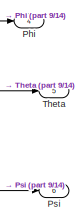
[diagram: root canvas - part 1/14, top right region]
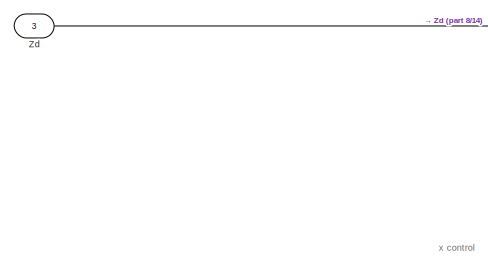
[diagram: root canvas - part 2/14, top left region]
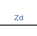
[diagram: root canvas - part 3/14, top left region]
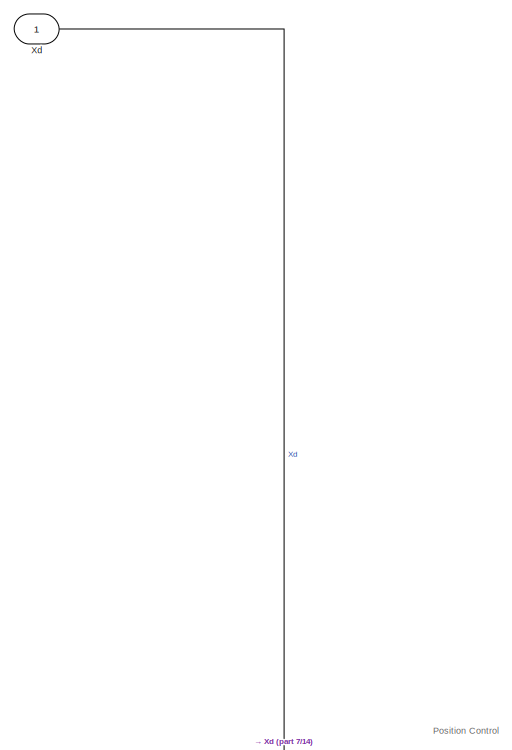
[diagram: root canvas - part 4/14, top left region]
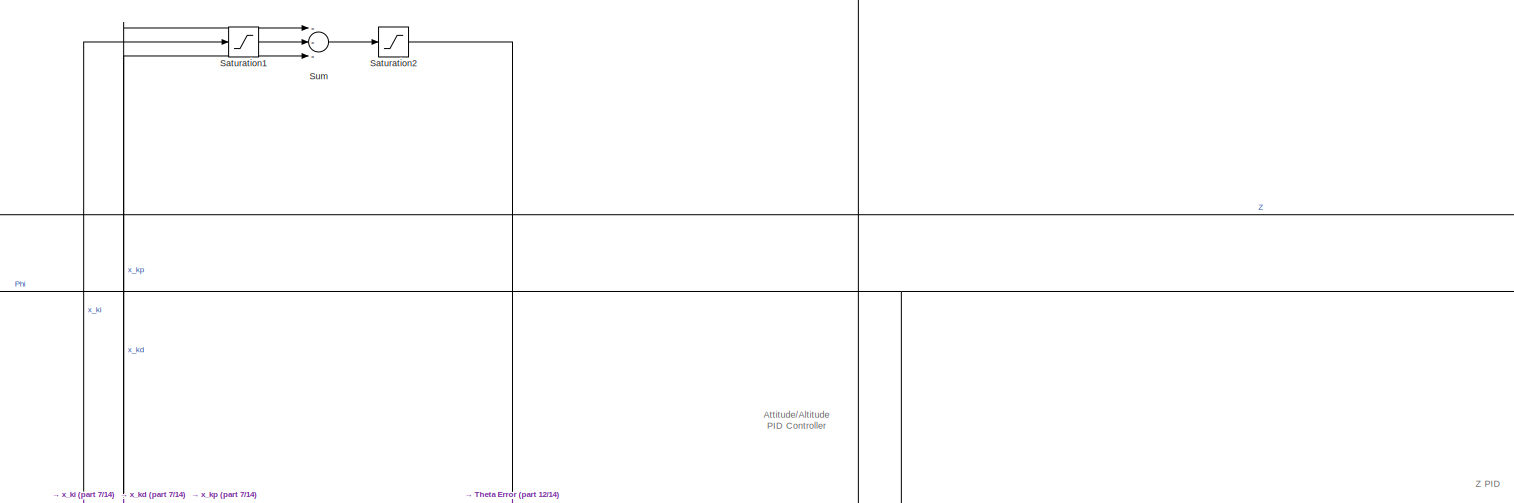
[diagram: root canvas - part 5/14, top center region]
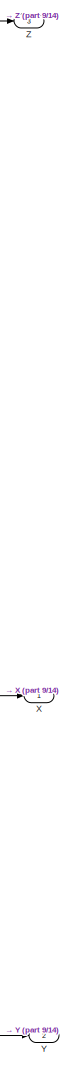
[diagram: root canvas - part 6/14, middle right region]
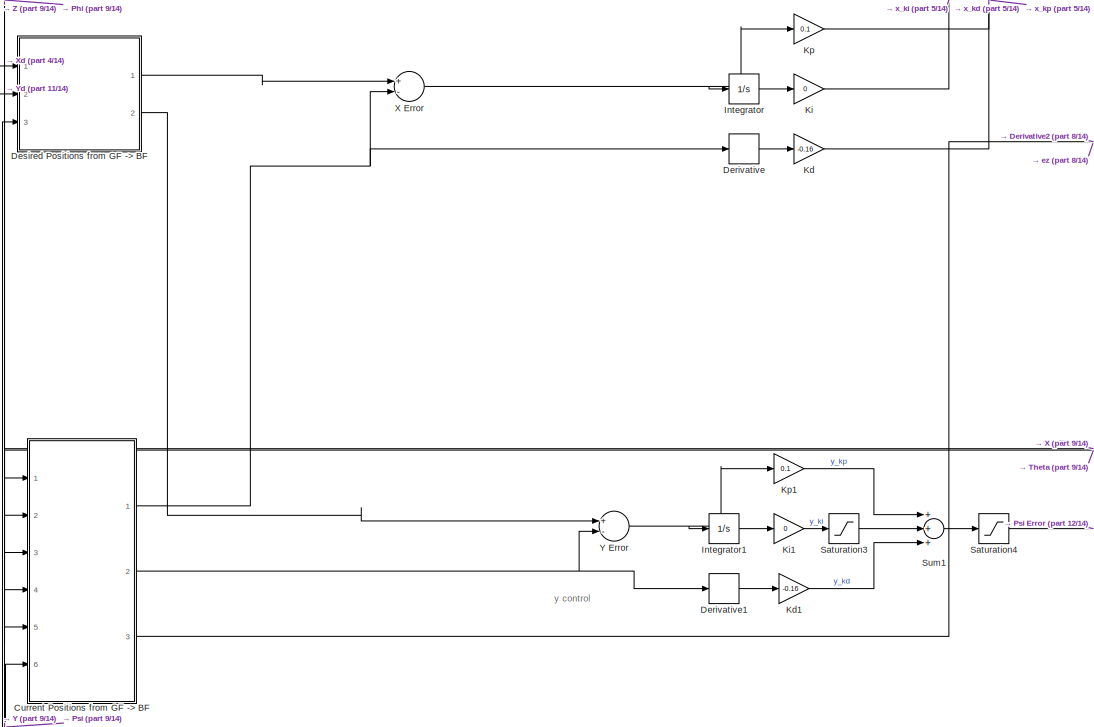
[diagram: root canvas - part 7/14, middle left region]
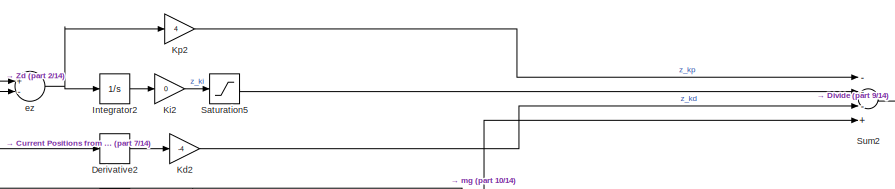
[diagram: root canvas - part 8/14, central region]
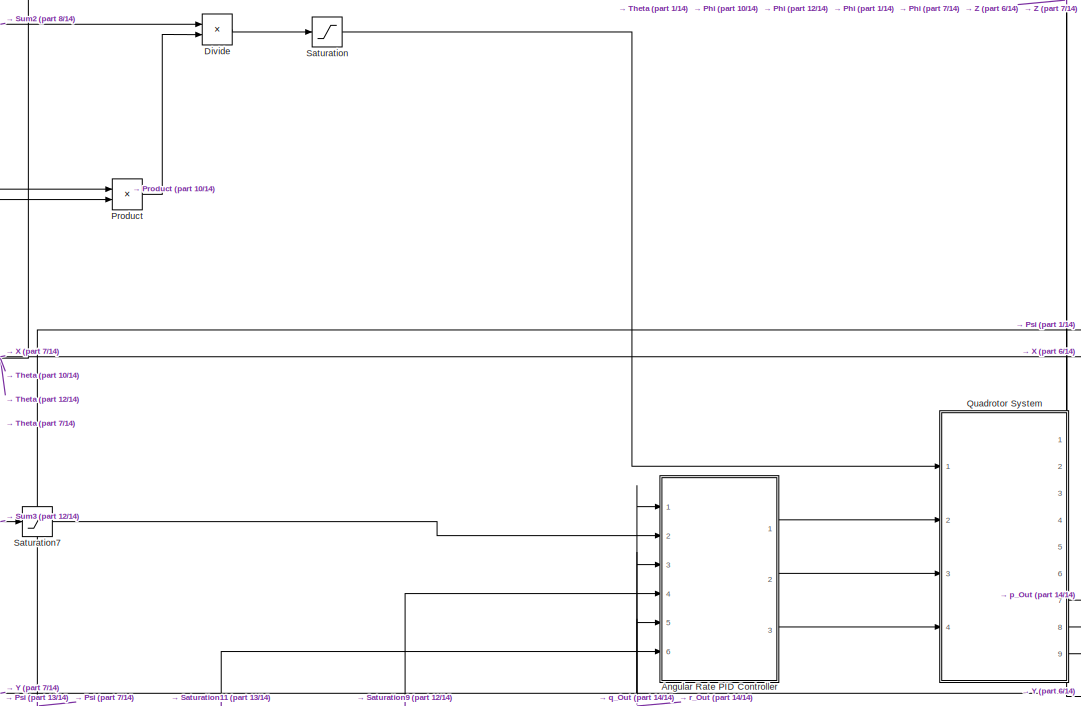
[diagram: root canvas - part 9/14, middle right region]
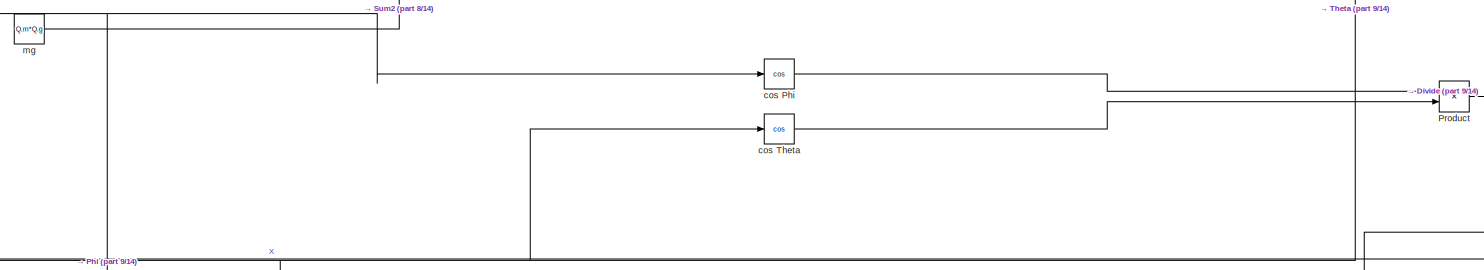
[diagram: root canvas - part 10/14, central region]
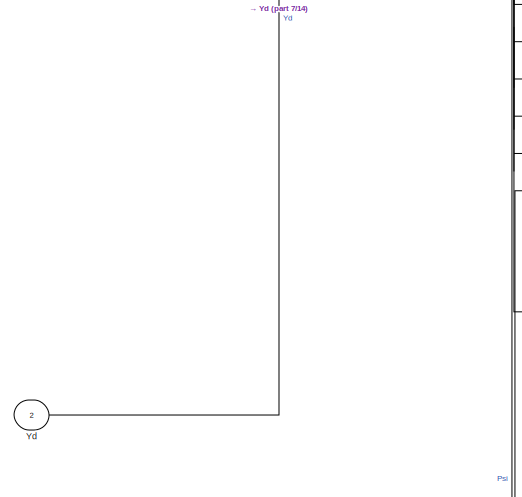
[diagram: root canvas - part 11/14, middle left region]
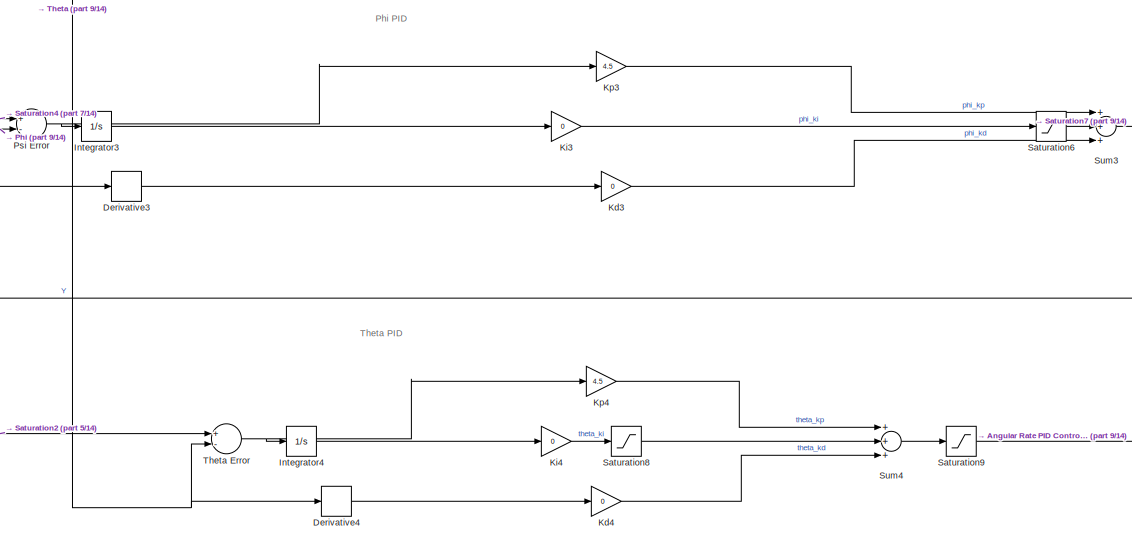
[diagram: root canvas - part 12/14, central region]
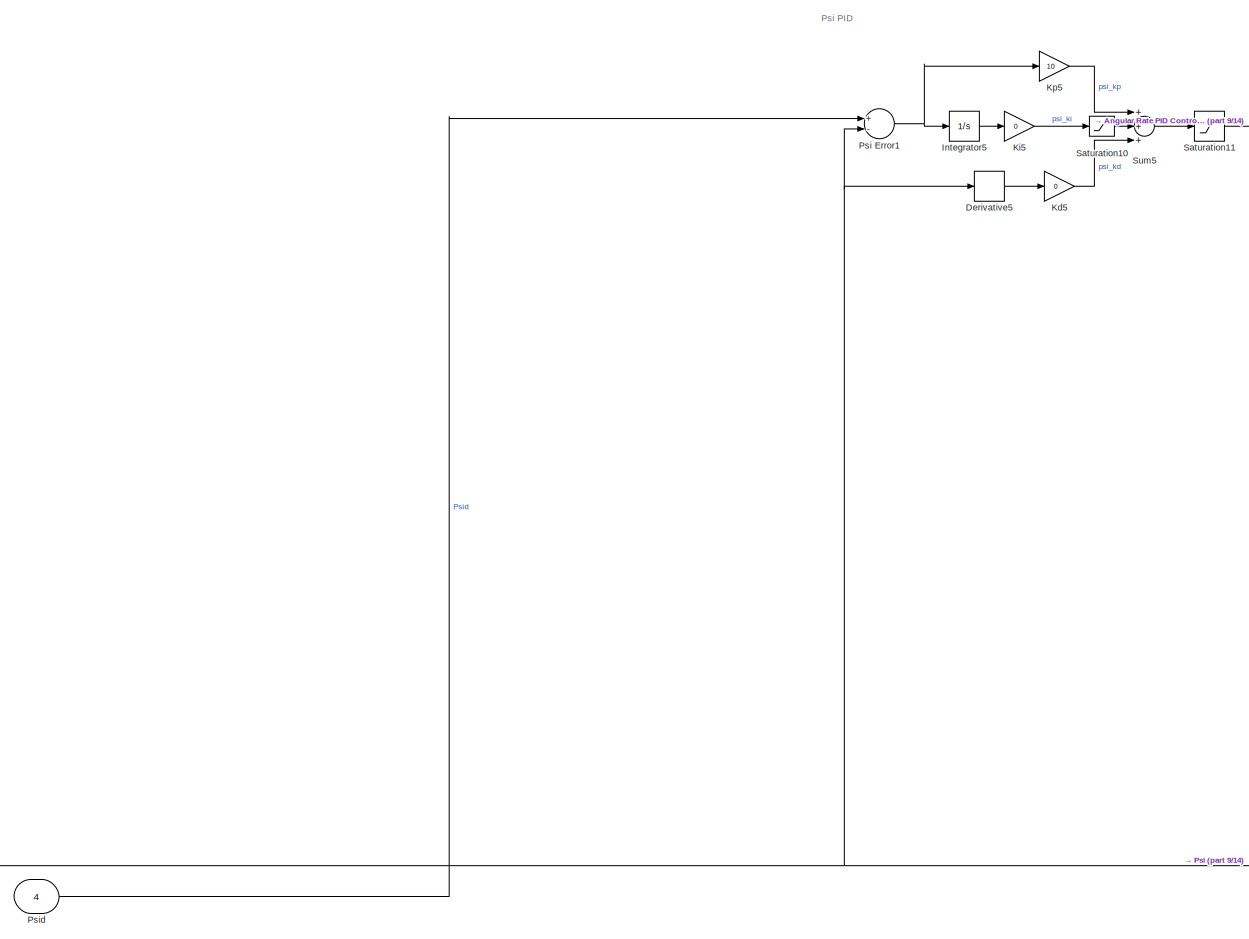
[diagram: root canvas - part 13/14, bottom center region]
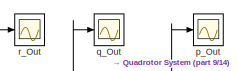
[diagram: root canvas - part 14/14, bottom right region]
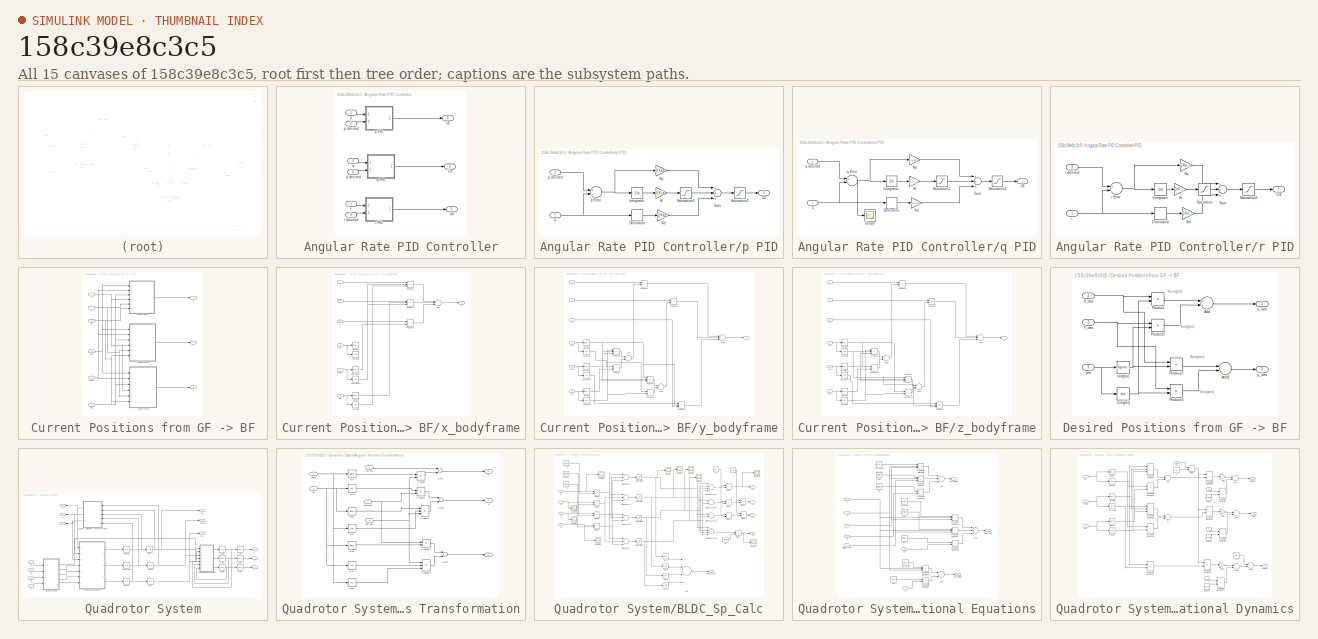
[diagram: thumbnail index - all 15 canvases of the model, root first then tree order]
MODEL slx_158c39e8c3c5
KIND model
CONFIG AbsTol = auto
CONFIG EnableMultiTasking = off
CONFIG FixedStep = 0.01
CONFIG MaxStep = auto
CONFIG MinStep = auto
CONFIG RelTol = 1e-3
CONFIG SampleTimeConstraint = Unconstrained
CONFIG Solver = FixedStepAuto
CONFIG SolverName = FixedStepAuto
CONFIG StartTime = 0.0
CONFIG StopTime = 10
BLOCK [SubSystem] Angular Rate PID Controller
  Ports = [6, 3]
  RequestExecContextInheritance = off
BLOCK [Outport] Angular Rate PID Controller/U2
  IconDisplay = Port number
BLOCK [Outport] Angular Rate PID Controller/U3
  IconDisplay = Port number
  Port = 2
BLOCK [Outport] Angular Rate PID Controller/U4
  IconDisplay = Port number
  Port = 3
BLOCK [Inport] Angular Rate PID Controller/p
  IconDisplay = Port number
BLOCK [SubSystem] Angular Rate PID Controller/p PID
  Ports = [2, 1]
  RequestExecContextInheritance = off
BLOCK [Derivative] Angular Rate PID Controller/p PID/Derivative
BLOCK [Integrator] Angular Rate PID Controller/p PID/Integrator
  Ports = [1, 1]
BLOCK [Gain] Angular Rate PID Controller/p PID/Kd
  Gain = Q.Kd_p
  OutDataTypeStr = Inherit: Inherit via internal rule
  ParamDataTypeStr = Inherit: Inherit via internal rule
  SaturateOnIntegerOverflow = off
BLOCK [Gain] Angular Rate PID Controller/p PID/Ki
  Gain = Q.Ki_p
  OutDataTypeStr = Inherit: Inherit via internal rule
  ParamDataTypeStr = Inherit: Inherit via internal rule
  SaturateOnIntegerOverflow = off
BLOCK [Gain] Angular Rate PID Controller/p PID/Kp
  Gain = Q.Kp_p
  OutDataTypeStr = Inherit: Inherit via internal rule
  ParamDataTypeStr = Inherit: Inherit via internal rule
  SaturateOnIntegerOverflow = off
BLOCK [Saturate] Angular Rate PID Controller/p PID/Saturation1
  InputPortMap = u0
  LowerLimit = Q.U2_min
  Ports = [1, 1]
  UpperLimit = Q.U2_max
  ZeroCross = off
BLOCK [Saturate] Angular Rate PID Controller/p PID/Saturation2
  InputPortMap = u0
  LowerLimit = Q.U2_min
  Ports = [1, 1]
  UpperLimit = Q.U2_max
  ZeroCross = off
BLOCK [Sum] Angular Rate PID Controller/p PID/Sum
  InputSameDT = off
  Inputs = +++
  OutDataTypeStr = Inherit: Inherit via internal rule
  Ports = [3, 1]
  SaturateOnIntegerOverflow = off
BLOCK [Outport] Angular Rate PID Controller/p PID/U2
  IconDisplay = Port number
BLOCK [Inport] Angular Rate PID Controller/p PID/p
  IconDisplay = Port number
BLOCK [Sum] Angular Rate PID Controller/p PID/p Error
  InputSameDT = off
  Inputs = +-
  OutDataTypeStr = Inherit: Inherit via internal rule
  Ports = [2, 1]
  SaturateOnIntegerOverflow = off
BLOCK [Inport] Angular Rate PID Controller/p PID/p desired
  IconDisplay = Port number
  Port = 2
BLOCK [Inport] Angular Rate PID Controller/p desired
  IconDisplay = Port number
  Port = 2
BLOCK [Inport] Angular Rate PID Controller/q
  IconDisplay = Port number
  Port = 3
BLOCK [SubSystem] Angular Rate PID Controller/q PID
  Ports = [2, 1]
  RequestExecContextInheritance = off
BLOCK [Derivative] Angular Rate PID Controller/q PID/Derivative
BLOCK [Integrator] Angular Rate PID Controller/q PID/Integrator
  Ports = [1, 1]
BLOCK [Gain] Angular Rate PID Controller/q PID/Kd
  Gain = Q.Kd_q
  OutDataTypeStr = Inherit: Inherit via internal rule
  ParamDataTypeStr = Inherit: Inherit via internal rule
  SaturateOnIntegerOverflow = off
BLOCK [Gain] Angular Rate PID Controller/q PID/Ki
  Gain = Q.Ki_q
  OutDataTypeStr = Inherit: Inherit via internal rule
  ParamDataTypeStr = Inherit: Inherit via internal rule
  SaturateOnIntegerOverflow = off
BLOCK [Gain] Angular Rate PID Controller/q PID/Kp
  Gain = Q.Kp_q
  OutDataTypeStr = Inherit: Inherit via internal rule
  ParamDataTypeStr = Inherit: Inherit via internal rule
  SaturateOnIntegerOverflow = off
BLOCK [Saturate] Angular Rate PID Controller/q PID/Saturation1
  InputPortMap = u0
  LowerLimit = Q.U3_min
  Ports = [1, 1]
  UpperLimit = Q.U3_max
  ZeroCross = off
BLOCK [Saturate] Angular Rate PID Controller/q PID/Saturation2
  InputPortMap = u0
  LowerLimit = Q.U3_min
  Ports = [1, 1]
  UpperLimit = Q.U3_max
  ZeroCross = off
BLOCK [Scope] Angular Rate PID Controller/q PID/Scope
  Floating = off
  NumInputPorts = 1
  Ports = [1]
  ScopeSpecificationString = Simulink.scopes.TimeScopeBlockCfg('CurrentConfiguration', extmgr.ConfigurationSet(extmgr.Configuration('Core','General UI',true),extmgr.Configuration('Core','Source UI',true),extmgr.Configuration('Sources','WiredSimulink',true,'DataLoggingVariableName','ScopeData11','DataLoggingSaveFormat','StructureWithTime','DataLoggingLimitDataPoints',true,'DataLoggingDecimation','1','DataLoggingDecimateData',t...<+912ch>
BLOCK [Sum] Angular Rate PID Controller/q PID/Sum
  InputSameDT = off
  Inputs = +++
  OutDataTypeStr = Inherit: Inherit via internal rule
  Ports = [3, 1]
  SaturateOnIntegerOverflow = off
BLOCK [Outport] Angular Rate PID Controller/q PID/U3
  IconDisplay = Port number
BLOCK [Inport] Angular Rate PID Controller/q PID/q
  IconDisplay = Port number
BLOCK [Sum] Angular Rate PID Controller/q PID/q Error
  InputSameDT = off
  Inputs = +-
  OutDataTypeStr = Inherit: Inherit via internal rule
  Ports = [2, 1]
  SaturateOnIntegerOverflow = off
BLOCK [Inport] Angular Rate PID Controller/q PID/q desired
  IconDisplay = Port number
  Port = 2
BLOCK [Inport] Angular Rate PID Controller/q desired
  IconDisplay = Port number
  Port = 4
BLOCK [Inport] Angular Rate PID Controller/r
  IconDisplay = Port number
  Port = 5
BLOCK [SubSystem] Angular Rate PID Controller/r PID
  Ports = [2, 1]
  RequestExecContextInheritance = off
BLOCK [Derivative] Angular Rate PID Controller/r PID/Derivative
BLOCK [Integrator] Angular Rate PID Controller/r PID/Integrator
  Ports = [1, 1]
BLOCK [Gain] Angular Rate PID Controller/r PID/Kd
  Gain = Q.Kd_r
  OutDataTypeStr = Inherit: Inherit via internal rule
  ParamDataTypeStr = Inherit: Inherit via internal rule
  SaturateOnIntegerOverflow = off
BLOCK [Gain] Angular Rate PID Controller/r PID/Ki
  Gain = Q.Ki_r
  OutDataTypeStr = Inherit: Inherit via internal rule
  ParamDataTypeStr = Inherit: Inherit via internal rule
  SaturateOnIntegerOverflow = off
BLOCK [Gain] Angular Rate PID Controller/r PID/Kp
  Gain = Q.Kp_r
  OutDataTypeStr = Inherit: Inherit via internal rule
  ParamDataTypeStr = Inherit: Inherit via internal rule
  SaturateOnIntegerOverflow = off
BLOCK [Saturate] Angular Rate PID Controller/r PID/Saturation
  InputPortMap = u0
  LowerLimit = Q.U4_min
  Ports = [1, 1]
  UpperLimit = Q.U4_max
  ZeroCross = off
BLOCK [Saturate] Angular Rate PID Controller/r PID/Saturation1
  InputPortMap = u0
  LowerLimit = Q.U4_min
  Ports = [1, 1]
  UpperLimit = Q.U4_max
  ZeroCross = off
BLOCK [Sum] Angular Rate PID Controller/r PID/Sum
  InputSameDT = off
  Inputs = +++
  OutDataTypeStr = Inherit: Inherit via internal rule
  Ports = [3, 1]
  SaturateOnIntegerOverflow = off
BLOCK [Outport] Angular Rate PID Controller/r PID/U4
  IconDisplay = Port number
BLOCK [Inport] Angular Rate PID Controller/r PID/r
  IconDisplay = Port number
BLOCK [Sum] Angular Rate PID Controller/r PID/r Error
  InputSameDT = off
  Inputs = +-
  OutDataTypeStr = Inherit: Inherit via internal rule
  Ports = [2, 1]
  SaturateOnIntegerOverflow = off
BLOCK [Inport] Angular Rate PID Controller/r PID/r desired
  IconDisplay = Port number
  Port = 2
BLOCK [Inport] Angular Rate PID Controller/r desired
  IconDisplay = Port number
  Port = 6
BLOCK [SubSystem] Current Positions from GF -> BF
  Ports = [6, 3]
  RequestExecContextInheritance = off
BLOCK [Inport] Current Positions from GF -> BF/Psi
  IconDisplay = Port number
  Port = 6
BLOCK [Inport] Current Positions from GF -> BF/X
  IconDisplay = Port number
BLOCK [Inport] Current Positions from GF -> BF/Y
  IconDisplay = Port number
  Port = 2
BLOCK [Inport] Current Positions from GF -> BF/Z
  IconDisplay = Port number
  Port = 3
BLOCK [Inport] Current Positions from GF -> BF/phi
  IconDisplay = Port number
  Port = 4
BLOCK [Inport] Current Positions from GF -> BF/theta
  IconDisplay = Port number
  Port = 5
BLOCK [Outport] Current Positions from GF -> BF/x
  IconDisplay = Port number
BLOCK [SubSystem] Current Positions from GF -> BF/x_bodyframe
  Ports = [6, 1]
  RequestExecContextInheritance = off
BLOCK [Sum] Current Positions from GF -> BF/x_bodyframe/Add
  InputSameDT = off
  Inputs = ++-
  OutDataTypeStr = Inherit: Inherit via internal rule
  Ports = [3, 1]
  SaturateOnIntegerOverflow = off
BLOCK [Product] Current Positions from GF -> BF/x_bodyframe/Product
  InputSameDT = off
  Inputs = 3
  OutDataTypeStr = Inherit: Inherit via internal rule
  Ports = [3, 1]
  RndMeth = Floor
  SaturateOnIntegerOverflow = off
BLOCK [Product] Current Positions from GF -> BF/x_bodyframe/Product1
  InputSameDT = off
  Inputs = 3
  OutDataTypeStr = Inherit: Inherit via internal rule
  Ports = [3, 1]
  RndMeth = Floor
  SaturateOnIntegerOverflow = off
BLOCK [Product] Current Positions from GF -> BF/x_bodyframe/Product2
  InputSameDT = off
  OutDataTypeStr = Inherit: Inherit via internal rule
  Ports = [2, 1]
  RndMeth = Floor
  SaturateOnIntegerOverflow = off
BLOCK [Inport] Current Positions from GF -> BF/x_bodyframe/X
  IconDisplay = Port number
  Port = 4
BLOCK [Inport] Current Positions from GF -> BF/x_bodyframe/Y
  IconDisplay = Port number
  Port = 5
BLOCK [Inport] Current Positions from GF -> BF/x_bodyframe/Z
  IconDisplay = Port number
  Port = 6
BLOCK [Trigonometry] Current Positions from GF -> BF/x_bodyframe/cos(phi)
  Operator = cos
  Ports = [1, 1]
BLOCK [Trigonometry] Current Positions from GF -> BF/x_bodyframe/cos(psi)
  Operator = cos
  Ports = [1, 1]
BLOCK [Trigonometry] Current Positions from GF -> BF/x_bodyframe/cos(theta)
  Operator = cos
  Ports = [1, 1]
BLOCK [Inport] Current Positions from GF -> BF/x_bodyframe/phi
  IconDisplay = Port number
BLOCK [Inport] Current Positions from GF -> BF/x_bodyframe/psi
  IconDisplay = Port number
  Port = 3
BLOCK [Trigonometry] Current Positions from GF -> BF/x_bodyframe/sin(phi)
  Ports = [1, 1]
BLOCK [Trigonometry] Current Positions from GF -> BF/x_bodyframe/sin(psi)
  Ports = [1, 1]
BLOCK [Trigonometry] Current Positions from GF -> BF/x_bodyframe/sin(theta)
  Ports = [1, 1]
BLOCK [Inport] Current Positions from GF -> BF/x_bodyframe/theta
  IconDisplay = Port number
  Port = 2
BLOCK [Outport] Current Positions from GF -> BF/x_bodyframe/x
  IconDisplay = Port number
BLOCK [Outport] Current Positions from GF -> BF/y
  IconDisplay = Port number
  Port = 2
BLOCK [SubSystem] Current Positions from GF -> BF/y_bodyframe
  Ports = [6, 1]
  RequestExecContextInheritance = off
BLOCK [Sum] Current Positions from GF -> BF/y_bodyframe/Add1
  InputSameDT = off
  Inputs = +-
  OutDataTypeStr = Inherit: Inherit via internal rule
  Ports = [2, 1]
  SaturateOnIntegerOverflow = off
BLOCK [Sum] Current Positions from GF -> BF/y_bodyframe/Add2
  InputSameDT = off
  OutDataTypeStr = Inherit: Inherit via internal rule
  Ports = [2, 1]
  SaturateOnIntegerOverflow = off
BLOCK [Sum] Current Positions from GF -> BF/y_bodyframe/Add3
  InputSameDT = off
  Inputs = +++
  OutDataTypeStr = Inherit: Inherit via internal rule
  Ports = [3, 1]
  SaturateOnIntegerOverflow = off
BLOCK [Product] Current Positions from GF -> BF/y_bodyframe/Product
  InputSameDT = off
  Inputs = 3
  OutDataTypeStr = Inherit: Inherit via internal rule
  Ports = [3, 1]
  RndMeth = Floor
  SaturateOnIntegerOverflow = off
BLOCK [Product] Current Positions from GF -> BF/y_bodyframe/Product2
  InputSameDT = off
  OutDataTypeStr = Inherit: Inherit via internal rule
  Ports = [2, 1]
  RndMeth = Floor
  SaturateOnIntegerOverflow = off
BLOCK [Product] Current Positions from GF -> BF/y_bodyframe/Product3
  InputSameDT = off
  OutDataTypeStr = Inherit: Inherit via internal rule
  Ports = [2, 1]
  RndMeth = Floor
  SaturateOnIntegerOverflow = off
BLOCK [Product] Current Positions from GF -> BF/y_bodyframe/Product4
  InputSameDT = off
  Inputs = 3
  OutDataTypeStr = Inherit: Inherit via internal rule
  Ports = [3, 1]
  RndMeth = Floor
  SaturateOnIntegerOverflow = off
BLOCK [Product] Current Positions from GF -> BF/y_bodyframe/Product5
  InputSameDT = off
  OutDataTypeStr = Inherit: Inherit via internal rule
  Ports = [2, 1]
  RndMeth = Floor
  SaturateOnIntegerOverflow = off
BLOCK [Product] Current Positions from GF -> BF/y_bodyframe/Product6
  InputSameDT = off
  OutDataTypeStr = Inherit: Inherit via internal rule
  Ports = [2, 1]
  RndMeth = Floor
  SaturateOnIntegerOverflow = off
BLOCK [Product] Current Positions from GF -> BF/y_bodyframe/Product7
  InputSameDT = off
  Inputs = 3
  OutDataTypeStr = Inherit: Inherit via internal rule
  Ports = [3, 1]
  RndMeth = Floor
  SaturateOnIntegerOverflow = off
BLOCK [Inport] Current Positions from GF -> BF/y_bodyframe/X
  IconDisplay = Port number
  Port = 4
BLOCK [Inport] Current Positions from GF -> BF/y_bodyframe/Y
  IconDisplay = Port number
  Port = 5
BLOCK [Inport] Current Positions from GF -> BF/y_bodyframe/Z
  IconDisplay = Port number
  Port = 6
BLOCK [Trigonometry] Current Positions from GF -> BF/y_bodyframe/cos(phi)
  Operator = cos
  Ports = [1, 1]
BLOCK [Trigonometry] Current Positions from GF -> BF/y_bodyframe/cos(psi)
  Operator = cos
  Ports = [1, 1]
BLOCK [Trigonometry] Current Positions from GF -> BF/y_bodyframe/cos(theta)
  Operator = cos
  Ports = [1, 1]
BLOCK [Inport] Current Positions from GF -> BF/y_bodyframe/phi
  IconDisplay = Port number
BLOCK [Inport] Current Positions from GF -> BF/y_bodyframe/psi
  IconDisplay = Port number
  Port = 3
BLOCK [Trigonometry] Current Positions from GF -> BF/y_bodyframe/sin(phi)
  Ports = [1, 1]
BLOCK [Trigonometry] Current Positions from GF -> BF/y_bodyframe/sin(psi)
  Ports = [1, 1]
BLOCK [Trigonometry] Current Positions from GF -> BF/y_bodyframe/sin(theta)
  Ports = [1, 1]
BLOCK [Inport] Current Positions from GF -> BF/y_bodyframe/theta
  IconDisplay = Port number
  Port = 2
BLOCK [Outport] Current Positions from GF -> BF/y_bodyframe/y
  IconDisplay = Port number
BLOCK [Outport] Current Positions from GF -> BF/z
  IconDisplay = Port number
  Port = 3
BLOCK [SubSystem] Current Positions from GF -> BF/z_bodyframe
  Ports = [6, 1]
  RequestExecContextInheritance = off
BLOCK [Sum] Current Positions from GF -> BF/z_bodyframe/Add1
  InputSameDT = off
  OutDataTypeStr = Inherit: Inherit via internal rule
  Ports = [2, 1]
  SaturateOnIntegerOverflow = off
BLOCK [Sum] Current Positions from GF -> BF/z_bodyframe/Add2
  InputSameDT = off
  Inputs = +-
  OutDataTypeStr = Inherit: Inherit via internal rule
  Ports = [2, 1]
  SaturateOnIntegerOverflow = off
BLOCK [Sum] Current Positions from GF -> BF/z_bodyframe/Add3
  InputSameDT = off
  Inputs = +++
  OutDataTypeStr = Inherit: Inherit via internal rule
  Ports = [3, 1]
  SaturateOnIntegerOverflow = off
BLOCK [Product] Current Positions from GF -> BF/z_bodyframe/Product
  InputSameDT = off
  Inputs = 3
  OutDataTypeStr = Inherit: Inherit via internal rule
  Ports = [3, 1]
  RndMeth = Floor
  SaturateOnIntegerOverflow = off
BLOCK [Product] Current Positions from GF -> BF/z_bodyframe/Product2
  InputSameDT = off
  OutDataTypeStr = Inherit: Inherit via internal rule
  Ports = [2, 1]
  RndMeth = Floor
  SaturateOnIntegerOverflow = off
BLOCK [Product] Current Positions from GF -> BF/z_bodyframe/Product3
  InputSameDT = off
  OutDataTypeStr = Inherit: Inherit via internal rule
  Ports = [2, 1]
  RndMeth = Floor
  SaturateOnIntegerOverflow = off
BLOCK [Product] Current Positions from GF -> BF/z_bodyframe/Product4
  InputSameDT = off
  Inputs = 3
  OutDataTypeStr = Inherit: Inherit via internal rule
  Ports = [3, 1]
  RndMeth = Floor
  SaturateOnIntegerOverflow = off
BLOCK [Product] Current Positions from GF -> BF/z_bodyframe/Product5
  InputSameDT = off
  OutDataTypeStr = Inherit: Inherit via internal rule
  Ports = [2, 1]
  RndMeth = Floor
  SaturateOnIntegerOverflow = off
BLOCK [Product] Current Positions from GF -> BF/z_bodyframe/Product6
  InputSameDT = off
  OutDataTypeStr = Inherit: Inherit via internal rule
  Ports = [2, 1]
  RndMeth = Floor
  SaturateOnIntegerOverflow = off
BLOCK [Product] Current Positions from GF -> BF/z_bodyframe/Product7
  InputSameDT = off
  Inputs = 3
  OutDataTypeStr = Inherit: Inherit via internal rule
  Ports = [3, 1]
  RndMeth = Floor
  SaturateOnIntegerOverflow = off
BLOCK [Inport] Current Positions from GF -> BF/z_bodyframe/X
  IconDisplay = Port number
  Port = 4
BLOCK [Inport] Current Positions from GF -> BF/z_bodyframe/Y
  IconDisplay = Port number
  Port = 5
BLOCK [Inport] Current Positions from GF -> BF/z_bodyframe/Z
  IconDisplay = Port number
  Port = 6
BLOCK [Trigonometry] Current Positions from GF -> BF/z_bodyframe/cos(phi)
  Operator = cos
  Ports = [1, 1]
BLOCK [Trigonometry] Current Positions from GF -> BF/z_bodyframe/cos(psi)
  Operator = cos
  Ports = [1, 1]
BLOCK [Trigonometry] Current Positions from GF -> BF/z_bodyframe/cos(theta)
  Operator = cos
  Ports = [1, 1]
BLOCK [Inport] Current Positions from GF -> BF/z_bodyframe/phi
  IconDisplay = Port number
BLOCK [Inport] Current Positions from GF -> BF/z_bodyframe/psi
  IconDisplay = Port number
  Port = 3
BLOCK [Trigonometry] Current Positions from GF -> BF/z_bodyframe/sin(phi)
  Ports = [1, 1]
BLOCK [Trigonometry] Current Positions from GF -> BF/z_bodyframe/sin(psi)
  Ports = [1, 1]
BLOCK [Trigonometry] Current Positions from GF -> BF/z_bodyframe/sin(theta)
  Ports = [1, 1]
BLOCK [Inport] Current Positions from GF -> BF/z_bodyframe/theta
  IconDisplay = Port number
  Port = 2
BLOCK [Outport] Current Positions from GF -> BF/z_bodyframe/z
  IconDisplay = Port number
BLOCK [Derivative] Derivative
BLOCK [Derivative] Derivative1
BLOCK [Derivative] Derivative2
BLOCK [Derivative] Derivative3
BLOCK [Derivative] Derivative4
BLOCK [Derivative] Derivative5
BLOCK [SubSystem] Desired Positions from GF -> BF
  Ports = [3, 2]
  RequestExecContextInheritance = off
BLOCK [Sum] Desired Positions from GF -> BF/Add
  InputSameDT = off
  OutDataTypeStr = Inherit: Inherit via internal rule
  Ports = [2, 1]
  SaturateOnIntegerOverflow = off
BLOCK [Sum] Desired Positions from GF -> BF/Add1
  InputSameDT = off
  Inputs = -+
  OutDataTypeStr = Inherit: Inherit via internal rule
  Ports = [2, 1]
  SaturateOnIntegerOverflow = off
BLOCK [Product] Desired Positions from GF -> BF/Product
  InputSameDT = off
  OutDataTypeStr = Inherit: Inherit via internal rule
  Ports = [2, 1]
  RndMeth = Floor
  SaturateOnIntegerOverflow = off
BLOCK [Product] Desired Positions from GF -> BF/Product1
  InputSameDT = off
  OutDataTypeStr = Inherit: Inherit via internal rule
  Ports = [2, 1]
  RndMeth = Floor
  SaturateOnIntegerOverflow = off
BLOCK [Product] Desired Positions from GF -> BF/Product2
  InputSameDT = off
  OutDataTypeStr = Inherit: Inherit via internal rule
  Ports = [2, 1]
  RndMeth = Floor
  SaturateOnIntegerOverflow = off
BLOCK [Product] Desired Positions from GF -> BF/Product3
  InputSameDT = off
  OutDataTypeStr = Inherit: Inherit via internal rule
  Ports = [2, 1]
  RndMeth = Floor
  SaturateOnIntegerOverflow = off
BLOCK [Inport] Desired Positions from GF -> BF/X_des
  IconDisplay = Port number
BLOCK [Inport] Desired Positions from GF -> BF/Y_des
  IconDisplay = Port number
  Port = 2
BLOCK [Trigonometry] Desired Positions from GF -> BF/cos(psi)
  Operator = cos
  Ports = [1, 1]
BLOCK [Inport] Desired Positions from GF -> BF/psi
  IconDisplay = Port number
  Port = 3
BLOCK [Trigonometry] Desired Positions from GF -> BF/sin(psi)
  Ports = [1, 1]
BLOCK [Outport] Desired Positions from GF -> BF/x_des
  IconDisplay = Port number
BLOCK [Outport] Desired Positions from GF -> BF/y_des
  IconDisplay = Port number
  Port = 2
BLOCK [Product] Divide
  InputSameDT = off
  Inputs = */
  OutDataTypeStr = Inherit: Inherit via internal rule
  Ports = [2, 1]
  RndMeth = Floor
  SaturateOnIntegerOverflow = off
BLOCK [Integrator] Integrator
  Ports = [1, 1]
BLOCK [Integrator] Integrator1
  Ports = [1, 1]
BLOCK [Integrator] Integrator2
  Ports = [1, 1]
BLOCK [Integrator] Integrator3
  Ports = [1, 1]
BLOCK [Integrator] Integrator4
  Ports = [1, 1]
BLOCK [Integrator] Integrator5
  Ports = [1, 1]
BLOCK [Gain] Kd
  Gain = -0.16
  OutDataTypeStr = Inherit: Inherit via internal rule
  ParamDataTypeStr = Inherit: Inherit via internal rule
  SaturateOnIntegerOverflow = off
BLOCK [Gain] Kd1
  Gain = -0.16
  OutDataTypeStr = Inherit: Inherit via internal rule
  ParamDataTypeStr = Inherit: Inherit via internal rule
  SaturateOnIntegerOverflow = off
BLOCK [Gain] Kd2
  Gain = -4
  OutDataTypeStr = Inherit: Inherit via internal rule
  ParamDataTypeStr = Inherit: Inherit via internal rule
  SaturateOnIntegerOverflow = off
BLOCK [Gain] Kd3
  Gain = 0
  OutDataTypeStr = Inherit: Inherit via internal rule
  ParamDataTypeStr = Inherit: Inherit via internal rule
  SaturateOnIntegerOverflow = off
BLOCK [Gain] Kd4
  Gain = 0
  OutDataTypeStr = Inherit: Inherit via internal rule
  ParamDataTypeStr = Inherit: Inherit via internal rule
  SaturateOnIntegerOverflow = off
BLOCK [Gain] Kd5
  Gain = 0
  OutDataTypeStr = Inherit: Inherit via internal rule
  ParamDataTypeStr = Inherit: Inherit via internal rule
  SaturateOnIntegerOverflow = off
BLOCK [Gain] Ki
  Gain = 0
  OutDataTypeStr = Inherit: Inherit via internal rule
  ParamDataTypeStr = Inherit: Inherit via internal rule
  SaturateOnIntegerOverflow = off
BLOCK [Gain] Ki1
  Gain = 0
  OutDataTypeStr = Inherit: Inherit via internal rule
  ParamDataTypeStr = Inherit: Inherit via internal rule
  SaturateOnIntegerOverflow = off
BLOCK [Gain] Ki2
  Gain = 0
  OutDataTypeStr = Inherit: Inherit via internal rule
  ParamDataTypeStr = Inherit: Inherit via internal rule
  SaturateOnIntegerOverflow = off
BLOCK [Gain] Ki3
  Gain = 0
  OutDataTypeStr = Inherit: Inherit via internal rule
  ParamDataTypeStr = Inherit: Inherit via internal rule
  SaturateOnIntegerOverflow = off
BLOCK [Gain] Ki4
  Gain = 0
  OutDataTypeStr = Inherit: Inherit via internal rule
  ParamDataTypeStr = Inherit: Inherit via internal rule
  SaturateOnIntegerOverflow = off
BLOCK [Gain] Ki5
  Gain = 0
  OutDataTypeStr = Inherit: Inherit via internal rule
  ParamDataTypeStr = Inherit: Inherit via internal rule
  SaturateOnIntegerOverflow = off
BLOCK [Gain] Kp
  Gain = 0.1
  OutDataTypeStr = Inherit: Inherit via internal rule
  ParamDataTypeStr = Inherit: Inherit via internal rule
  SaturateOnIntegerOverflow = off
BLOCK [Gain] Kp1
  Gain = 0.1
  OutDataTypeStr = Inherit: Inherit via internal rule
  ParamDataTypeStr = Inherit: Inherit via internal rule
  SaturateOnIntegerOverflow = off
BLOCK [Gain] Kp2
  Gain = 4
  OutDataTypeStr = Inherit: Inherit via internal rule
  ParamDataTypeStr = Inherit: Inherit via internal rule
  SaturateOnIntegerOverflow = off
BLOCK [Gain] Kp3
  Gain = 4.5
  OutDataTypeStr = Inherit: Inherit via internal rule
  ParamDataTypeStr = Inherit: Inherit via internal rule
  SaturateOnIntegerOverflow = off
BLOCK [Gain] Kp4
  Gain = 4.5
  OutDataTypeStr = Inherit: Inherit via internal rule
  ParamDataTypeStr = Inherit: Inherit via internal rule
  SaturateOnIntegerOverflow = off
BLOCK [Gain] Kp5
  Gain = 10
  OutDataTypeStr = Inherit: Inherit via internal rule
  ParamDataTypeStr = Inherit: Inherit via internal rule
  SaturateOnIntegerOverflow = off
BLOCK [Outport] Phi
  IconDisplay = Port number
  Port = 4
BLOCK [Product] Product
  InputSameDT = off
  OutDataTypeStr = Inherit: Inherit via internal rule
  Ports = [2, 1]
  SaturateOnIntegerOverflow = off
BLOCK [Outport] Psi
  IconDisplay = Port number
  Port = 6
BLOCK [Sum] Psi Error
  InputSameDT = off
  Inputs = +-
  OutDataTypeStr = Inherit: Inherit via internal rule
  Ports = [2, 1]
  SaturateOnIntegerOverflow = off
BLOCK [Sum] Psi Error1
  InputSameDT = off
  Inputs = +-
  OutDataTypeStr = Inherit: Inherit via internal rule
  Ports = [2, 1]
  SaturateOnIntegerOverflow = off
BLOCK [Inport] Psid
  IconDisplay = Port number
  Port = 4
BLOCK [SubSystem] Quadrotor System
  Ports = [4, 9]
  RequestExecContextInheritance = off
BLOCK [SubSystem] Quadrotor System/Angular Velocities Transformation
  Ports = [5, 3]
  RequestExecContextInheritance = off
BLOCK [Product] Quadrotor System/Angular Velocities Transformation/Product
  InputSameDT = off
  OutDataTypeStr = Inherit: Inherit via internal rule
  Ports = [2, 1]
  SaturateOnIntegerOverflow = off
BLOCK [Product] Quadrotor System/Angular Velocities Transformation/Product1
  InputSameDT = off
  OutDataTypeStr = Inherit: Inherit via internal rule
  Ports = [2, 1]
  SaturateOnIntegerOverflow = off
BLOCK [Product] Quadrotor System/Angular Velocities Transformation/Product2
  InputSameDT = off
  Inputs = 3
  OutDataTypeStr = Inherit: Inherit via internal rule
  Ports = [3, 1]
  SaturateOnIntegerOverflow = off
BLOCK [Product] Quadrotor System/Angular Velocities Transformation/Product3
  InputSameDT = off
  OutDataTypeStr = Inherit: Inherit via internal rule
  Ports = [2, 1]
  SaturateOnIntegerOverflow = off
BLOCK [Product] Quadrotor System/Angular Velocities Transformation/Product4
  InputSameDT = off
  Inputs = 3
  OutDataTypeStr = Inherit: Inherit via internal rule
  Ports = [3, 1]
  SaturateOnIntegerOverflow = off
BLOCK [Sum] Quadrotor System/Angular Velocities Transformation/Sum
  InputSameDT = off
  Inputs = +-
  OutDataTypeStr = Inherit: Inherit via internal rule
  Ports = [2, 1]
  SaturateOnIntegerOverflow = off
BLOCK [Sum] Quadrotor System/Angular Velocities Transformation/Sum1
  InputSameDT = off
  OutDataTypeStr = Inherit: Inherit via internal rule
  Ports = [2, 1]
  SaturateOnIntegerOverflow = off
BLOCK [Sum] Quadrotor System/Angular Velocities Transformation/Sum2
  InputSameDT = off
  OutDataTypeStr = Inherit: Inherit via internal rule
  Ports = [2, 1]
  SaturateOnIntegerOverflow = off
BLOCK [Outport] Quadrotor System/Angular Velocities Transformation/p
  IconDisplay = Port number
BLOCK [Inport] Quadrotor System/Angular Velocities Transformation/phi
  IconDisplay = Port number
  Port = 2
BLOCK [Inport] Quadrotor System/Angular Velocities Transformation/phi_dot
  IconDisplay = Port number
  Port = 3
BLOCK [Inport] Quadrotor System/Angular Velocities Transformation/psi_dot
  IconDisplay = Port number
  Port = 5
BLOCK [Outport] Quadrotor System/Angular Velocities Transformation/q
  IconDisplay = Port number
  Port = 2
BLOCK [Outport] Quadrotor System/Angular Velocities Transformation/r
  IconDisplay = Port number
  Port = 3
BLOCK [Trigonometry] Quadrotor System/Angular Velocities Transformation/sin
  Ports = [1, 1]
BLOCK [Trigonometry] Quadrotor System/Angular Velocities Transformation/sin1
  Operator = cos
  Ports = [1, 1]
BLOCK [Trigonometry] Quadrotor System/Angular Velocities Transformation/sin2
  Ports = [1, 1]
BLOCK [Trigonometry] Quadrotor System/Angular Velocities Transformation/sin3
  Ports = [1, 1]
BLOCK [Trigonometry] Quadrotor System/Angular Velocities Transformation/sin4
  Operator = cos
  Ports = [1, 1]
BLOCK [Trigonometry] Quadrotor System/Angular Velocities Transformation/sin5
  Operator = cos
  Ports = [1, 1]
BLOCK [Trigonometry] Quadrotor System/Angular Velocities Transformation/sin6
  Operator = cos
  Ports = [1, 1]
BLOCK [Inport] Quadrotor System/Angular Velocities Transformation/theta
  IconDisplay = Port number
BLOCK [Inport] Quadrotor System/Angular Velocities Transformation/theta_dot
  IconDisplay = Port number
  Port = 4
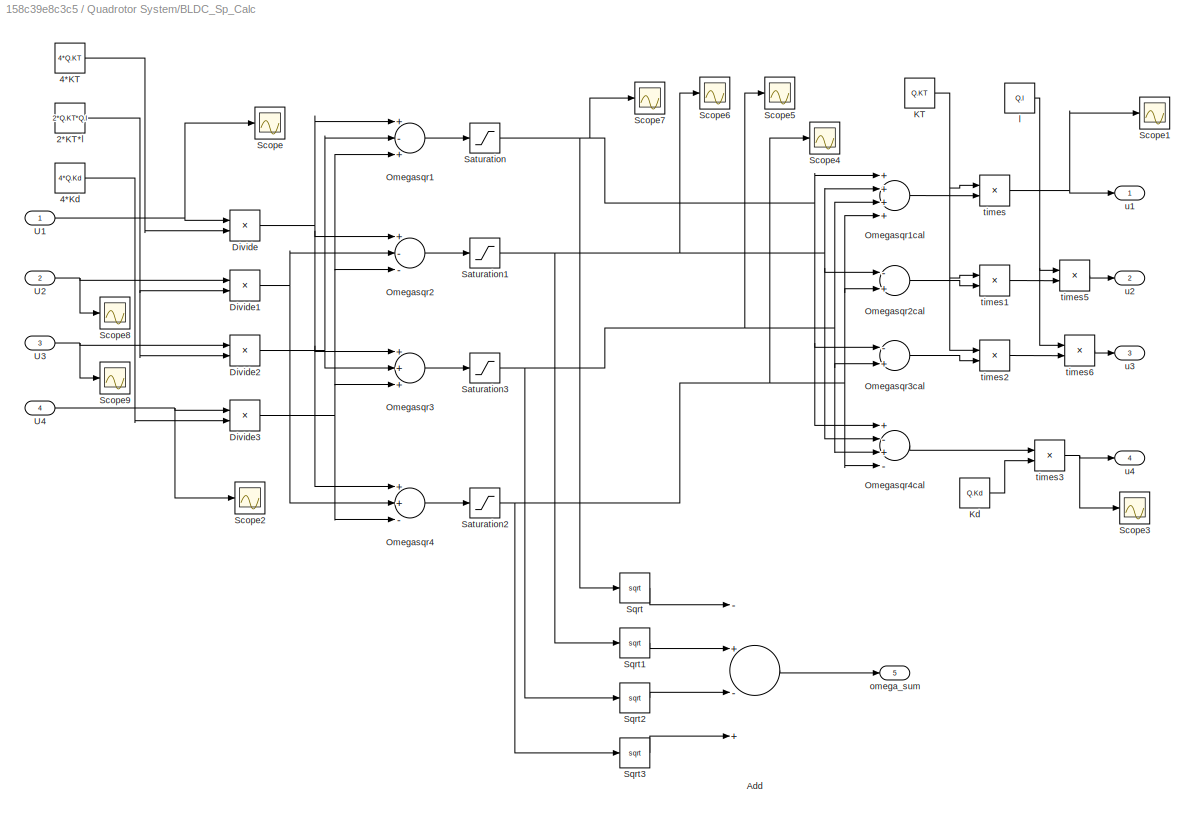
BLOCK [SubSystem] Quadrotor System/BLDC_Sp_Calc
  Ports = [4, 5]
  RequestExecContextInheritance = off
BLOCK [Constant] Quadrotor System/BLDC_Sp_Calc/2*KT*l
  Value = 2*Q.KT*Q.l
BLOCK [Constant] Quadrotor System/BLDC_Sp_Calc/4*KT
  Value = 4*Q.KT
BLOCK [Constant] Quadrotor System/BLDC_Sp_Calc/4*Kd
  Value = 4*Q.Kd
BLOCK [Sum] Quadrotor System/BLDC_Sp_Calc/Add
  InputSameDT = off
  Inputs = -+-+
  OutDataTypeStr = Inherit: Inherit via internal rule
  Ports = [4, 1]
  SaturateOnIntegerOverflow = off
BLOCK [Product] Quadrotor System/BLDC_Sp_Calc/Divide
  InputSameDT = off
  Inputs = */
  OutDataTypeStr = Inherit: Inherit via internal rule
  Ports = [2, 1]
  RndMeth = Floor
  SaturateOnIntegerOverflow = off
BLOCK [Product] Quadrotor System/BLDC_Sp_Calc/Divide1
  InputSameDT = off
  Inputs = */
  OutDataTypeStr = Inherit: Inherit via internal rule
  Ports = [2, 1]
  RndMeth = Floor
  SaturateOnIntegerOverflow = off
BLOCK [Product] Quadrotor System/BLDC_Sp_Calc/Divide2
  InputSameDT = off
  Inputs = */
  OutDataTypeStr = Inherit: Inherit via internal rule
  Ports = [2, 1]
  RndMeth = Floor
  SaturateOnIntegerOverflow = off
BLOCK [Product] Quadrotor System/BLDC_Sp_Calc/Divide3
  InputSameDT = off
  Inputs = */
  OutDataTypeStr = Inherit: Inherit via internal rule
  Ports = [2, 1]
  RndMeth = Floor
  SaturateOnIntegerOverflow = off
BLOCK [Constant] Quadrotor System/BLDC_Sp_Calc/KT
  Value = Q.KT
BLOCK [Constant] Quadrotor System/BLDC_Sp_Calc/Kd
  Value = Q.Kd
BLOCK [Sum] Quadrotor System/BLDC_Sp_Calc/Omegasqr1
  InputSameDT = off
  Inputs = +-+
  OutDataTypeStr = Inherit: Inherit via internal rule
  Ports = [3, 1]
  SaturateOnIntegerOverflow = off
BLOCK [Sum] Quadrotor System/BLDC_Sp_Calc/Omegasqr1cal
  InputSameDT = off
  Inputs = ++++
  OutDataTypeStr = Inherit: Inherit via internal rule
  Ports = [4, 1]
  SaturateOnIntegerOverflow = off
BLOCK [Sum] Quadrotor System/BLDC_Sp_Calc/Omegasqr2
  InputSameDT = off
  Inputs = +--
  OutDataTypeStr = Inherit: Inherit via internal rule
  Ports = [3, 1]
  SaturateOnIntegerOverflow = off
BLOCK [Sum] Quadrotor System/BLDC_Sp_Calc/Omegasqr2cal
  InputSameDT = off
  Inputs = -+
  OutDataTypeStr = Inherit: Inherit via internal rule
  Ports = [2, 1]
  SaturateOnIntegerOverflow = off
BLOCK [Sum] Quadrotor System/BLDC_Sp_Calc/Omegasqr3
  InputSameDT = off
  Inputs = +++
  OutDataTypeStr = Inherit: Inherit via internal rule
  Ports = [3, 1]
  SaturateOnIntegerOverflow = off
BLOCK [Sum] Quadrotor System/BLDC_Sp_Calc/Omegasqr3cal
  InputSameDT = off
  Inputs = -+
  OutDataTypeStr = Inherit: Inherit via internal rule
  Ports = [2, 1]
  SaturateOnIntegerOverflow = off
BLOCK [Sum] Quadrotor System/BLDC_Sp_Calc/Omegasqr4
  InputSameDT = off
  Inputs = ++-
  OutDataTypeStr = Inherit: Inherit via internal rule
  Ports = [3, 1]
  SaturateOnIntegerOverflow = off
BLOCK [Sum] Quadrotor System/BLDC_Sp_Calc/Omegasqr4cal
  InputSameDT = off
  Inputs = +-+-
  OutDataTypeStr = Inherit: Inherit via internal rule
  Ports = [4, 1]
  SaturateOnIntegerOverflow = off
BLOCK [Saturate] Quadrotor System/BLDC_Sp_Calc/Saturation
  InputPortMap = u0
  LowerLimit = Q.min_motor_speed^2
  Ports = [1, 1]
  UpperLimit = Q.max_motor_speed^2
  ZeroCross = off
BLOCK [Saturate] Quadrotor System/BLDC_Sp_Calc/Saturation1
  InputPortMap = u0
  LowerLimit = Q.min_motor_speed^2
  Ports = [1, 1]
  UpperLimit = Q.max_motor_speed^2
  ZeroCross = off
BLOCK [Saturate] Quadrotor System/BLDC_Sp_Calc/Saturation2
  InputPortMap = u0
  LowerLimit = Q.min_motor_speed^2
  Ports = [1, 1]
  UpperLimit = Q.max_motor_speed^2
  ZeroCross = off
BLOCK [Saturate] Quadrotor System/BLDC_Sp_Calc/Saturation3
  InputPortMap = u0
  LowerLimit = Q.min_motor_speed^2
  Ports = [1, 1]
  UpperLimit = Q.max_motor_speed^2
  ZeroCross = off
BLOCK [Scope] Quadrotor System/BLDC_Sp_Calc/Scope
  Floating = off
  NumInputPorts = 1
  Ports = [1]
  ScopeSpecificationString = Simulink.scopes.TimeScopeBlockCfg('CurrentConfiguration', extmgr.ConfigurationSet(extmgr.Configuration('Core','General UI',true),extmgr.Configuration('Core','Source UI',true),extmgr.Configuration('Sources','WiredSimulink',true,'DataLoggingVariableName','ScopeData2','DataLoggingSaveFormat','StructureWithTime','DataLoggingLimitDataPoints',true,'DataLoggingDecimation','1','DataLoggingDecimateData',tr...<+911ch>
BLOCK [Scope] Quadrotor System/BLDC_Sp_Calc/Scope1
  Floating = off
  NumInputPorts = 1
  Ports = [1]
  ScopeSpecificationString = Simulink.scopes.TimeScopeBlockCfg('CurrentConfiguration', extmgr.ConfigurationSet(extmgr.Configuration('Core','General UI',true),extmgr.Configuration('Core','Source UI',true),extmgr.Configuration('Sources','WiredSimulink',true,'DataLoggingVariableName','ScopeData3','DataLoggingSaveFormat','StructureWithTime','DataLoggingLimitDataPoints',true,'DataLoggingDecimation','1','DataLoggingDecimateData',tr...<+911ch>
BLOCK [Scope] Quadrotor System/BLDC_Sp_Calc/Scope2
  Floating = off
  NumInputPorts = 1
  Ports = [1]
  ScopeSpecificationString = Simulink.scopes.TimeScopeBlockCfg('CurrentConfiguration', extmgr.ConfigurationSet(extmgr.Configuration('Core','General UI',true),extmgr.Configuration('Core','Source UI',true),extmgr.Configuration('Sources','WiredSimulink',true,'DataLoggingVariableName','ScopeData4','DataLoggingSaveFormat','StructureWithTime','DataLoggingLimitDataPoints',true,'DataLoggingDecimation','1','DataLoggingDecimateData',tr...<+911ch>
BLOCK [Scope] Quadrotor System/BLDC_Sp_Calc/Scope3
  Floating = off
  NumInputPorts = 1
  Ports = [1]
  ScopeSpecificationString = Simulink.scopes.TimeScopeBlockCfg('CurrentConfiguration', extmgr.ConfigurationSet(extmgr.Configuration('Core','General UI',true),extmgr.Configuration('Core','Source UI',true),extmgr.Configuration('Sources','WiredSimulink',true,'DataLoggingVariableName','ScopeData5','DataLoggingSaveFormat','StructureWithTime','DataLoggingLimitDataPoints',true,'DataLoggingDecimation','1','DataLoggingDecimateData',tr...<+911ch>
BLOCK [Scope] Quadrotor System/BLDC_Sp_Calc/Scope4
  Floating = off
  NumInputPorts = 1
  Ports = [1]
  ScopeSpecificationString = Simulink.scopes.TimeScopeBlockCfg('CurrentConfiguration', extmgr.ConfigurationSet(extmgr.Configuration('Core','General UI',true),extmgr.Configuration('Core','Source UI',true),extmgr.Configuration('Sources','WiredSimulink',true,'DataLoggingVariableName','ScopeData6','DataLoggingSaveFormat','StructureWithTime','DataLoggingLimitDataPoints',true,'DataLoggingDecimation','1','DataLoggingDecimateData',tr...<+911ch>
BLOCK [Scope] Quadrotor System/BLDC_Sp_Calc/Scope5
  Floating = off
  NumInputPorts = 1
  Ports = [1]
  ScopeSpecificationString = Simulink.scopes.TimeScopeBlockCfg('CurrentConfiguration', extmgr.ConfigurationSet(extmgr.Configuration('Core','General UI',true),extmgr.Configuration('Core','Source UI',true),extmgr.Configuration('Sources','WiredSimulink',true,'DataLoggingVariableName','ScopeData7','DataLoggingSaveFormat','StructureWithTime','DataLoggingLimitDataPoints',true,'DataLoggingDecimation','1','DataLoggingDecimateData',tr...<+911ch>
BLOCK [Scope] Quadrotor System/BLDC_Sp_Calc/Scope6
  Floating = off
  NumInputPorts = 1
  Ports = [1]
  ScopeSpecificationString = Simulink.scopes.TimeScopeBlockCfg('CurrentConfiguration', extmgr.ConfigurationSet(extmgr.Configuration('Core','General UI',true),extmgr.Configuration('Core','Source UI',true),extmgr.Configuration('Sources','WiredSimulink',true,'DataLoggingVariableName','ScopeData8','DataLoggingSaveFormat','StructureWithTime','DataLoggingLimitDataPoints',true,'DataLoggingDecimation','1','DataLoggingDecimateData',tr...<+911ch>
BLOCK [Scope] Quadrotor System/BLDC_Sp_Calc/Scope7
  Floating = off
  NumInputPorts = 1
  Ports = [1]
  ScopeSpecificationString = Simulink.scopes.TimeScopeBlockCfg('CurrentConfiguration', extmgr.ConfigurationSet(extmgr.Configuration('Core','General UI',true),extmgr.Configuration('Core','Source UI',true),extmgr.Configuration('Sources','WiredSimulink',true,'DataLoggingVariableName','ScopeData9','DataLoggingSaveFormat','StructureWithTime','DataLoggingLimitDataPoints',true,'DataLoggingDecimation','1','DataLoggingDecimateData',tr...<+911ch>
BLOCK [Scope] Quadrotor System/BLDC_Sp_Calc/Scope8
  Floating = off
  NumInputPorts = 1
  Ports = [1]
  ScopeSpecificationString = Simulink.scopes.TimeScopeBlockCfg('CurrentConfiguration', extmgr.ConfigurationSet(extmgr.Configuration('Core','General UI',true),extmgr.Configuration('Core','Source UI',true),extmgr.Configuration('Sources','WiredSimulink',true,'DataLoggingSaveFormat','StructureWithTime','DataLoggingLimitDataPoints',true,'DataLoggingDecimation','1','DataLoggingDecimateData',true),extmgr.Configuration('Visuals','Tim...<+872ch>
BLOCK [Scope] Quadrotor System/BLDC_Sp_Calc/Scope9
  Floating = off
  NumInputPorts = 1
  Ports = [1]
  ScopeSpecificationString = Simulink.scopes.TimeScopeBlockCfg('CurrentConfiguration', extmgr.ConfigurationSet(extmgr.Configuration('Core','General UI',true),extmgr.Configuration('Core','Source UI',true),extmgr.Configuration('Sources','WiredSimulink',true,'DataLoggingVariableName','ScopeData1','DataLoggingSaveFormat','StructureWithTime','DataLoggingLimitDataPoints',true,'DataLoggingDecimation','1','DataLoggingDecimateData',tr...<+911ch>
BLOCK [Sqrt] Quadrotor System/BLDC_Sp_Calc/Sqrt
BLOCK [Sqrt] Quadrotor System/BLDC_Sp_Calc/Sqrt1
BLOCK [Sqrt] Quadrotor System/BLDC_Sp_Calc/Sqrt2
BLOCK [Sqrt] Quadrotor System/BLDC_Sp_Calc/Sqrt3
BLOCK [Inport] Quadrotor System/BLDC_Sp_Calc/U1
  IconDisplay = Port number
BLOCK [Inport] Quadrotor System/BLDC_Sp_Calc/U2
  IconDisplay = Port number
  Port = 2
BLOCK [Inport] Quadrotor System/BLDC_Sp_Calc/U3
  IconDisplay = Port number
  Port = 3
BLOCK [Inport] Quadrotor System/BLDC_Sp_Calc/U4
  IconDisplay = Port number
  Port = 4
BLOCK [Constant] Quadrotor System/BLDC_Sp_Calc/l
  Value = Q.l
BLOCK [Outport] Quadrotor System/BLDC_Sp_Calc/omega_sum
  IconDisplay = Port number
  Port = 5
BLOCK [Product] Quadrotor System/BLDC_Sp_Calc/times
  InputSameDT = off
  Inputs = **
  OutDataTypeStr = Inherit: Inherit via internal rule
  Ports = [2, 1]
  RndMeth = Floor
  SaturateOnIntegerOverflow = off
BLOCK [Product] Quadrotor System/BLDC_Sp_Calc/times1
  InputSameDT = off
  Inputs = **
  OutDataTypeStr = Inherit: Inherit via internal rule
  Ports = [2, 1]
  RndMeth = Floor
  SaturateOnIntegerOverflow = off
BLOCK [Product] Quadrotor System/BLDC_Sp_Calc/times2
  InputSameDT = off
  Inputs = **
  OutDataTypeStr = Inherit: Inherit via internal rule
  Ports = [2, 1]
  RndMeth = Floor
  SaturateOnIntegerOverflow = off
BLOCK [Product] Quadrotor System/BLDC_Sp_Calc/times3
  InputSameDT = off
  Inputs = **
  OutDataTypeStr = Inherit: Inherit via internal rule
  Ports = [2, 1]
  RndMeth = Floor
  SaturateOnIntegerOverflow = off
BLOCK [Product] Quadrotor System/BLDC_Sp_Calc/times5
  InputSameDT = off
  Inputs = **
  OutDataTypeStr = Inherit: Inherit via internal rule
  Ports = [2, 1]
  RndMeth = Floor
  SaturateOnIntegerOverflow = off
BLOCK [Product] Quadrotor System/BLDC_Sp_Calc/times6
  InputSameDT = off
  Inputs = **
  OutDataTypeStr = Inherit: Inherit via internal rule
  Ports = [2, 1]
  RndMeth = Floor
  SaturateOnIntegerOverflow = off
BLOCK [Outport] Quadrotor System/BLDC_Sp_Calc/u1
  IconDisplay = Port number
BLOCK [Outport] Quadrotor System/BLDC_Sp_Calc/u2
  IconDisplay = Port number
  Port = 2
BLOCK [Outport] Quadrotor System/BLDC_Sp_Calc/u3
  IconDisplay = Port number
  Port = 3
BLOCK [Outport] Quadrotor System/BLDC_Sp_Calc/u4
  IconDisplay = Port number
  Port = 4
BLOCK [Outport] Quadrotor System/Phi
  IconDisplay = Port number
  Port = 2
BLOCK [Outport] Quadrotor System/Psi
  IconDisplay = Port number
  Port = 4
BLOCK [SubSystem] Quadrotor System/Rotational Equations
  Ports = [7, 3]
  RequestExecContextInheritance = off
BLOCK [Constant] Quadrotor System/Rotational Equations/(Jx-Jy)//Jz
  Value = (Q.Jx - Q.Jy)/Q.Jz
BLOCK [Constant] Quadrotor System/Rotational Equations/(Jy-Jz)//Jx
  Value = (Q.Jy - Q.Jz)/Q.Jx
BLOCK [Constant] Quadrotor System/Rotational Equations/(Jz-Jx)//Jy
  Value = (Q.Jz - Q.Jx)/Q.Jy
BLOCK [Constant] Quadrotor System/Rotational Equations/1//Jz
  Value = 1/Q.Jz
BLOCK [Sum] Quadrotor System/Rotational Equations/Add
  InputSameDT = off
  Inputs = +-+
  OutDataTypeStr = Inherit: Inherit via internal rule
  Ports = [3, 1]
  SaturateOnIntegerOverflow = off
BLOCK [Sum] Quadrotor System/Rotational Equations/Add1
  InputSameDT = off
  Inputs = +++
  OutDataTypeStr = Inherit: Inherit via internal rule
  Ports = [3, 1]
  SaturateOnIntegerOverflow = off
BLOCK [Sum] Quadrotor System/Rotational Equations/Add2
  InputSameDT = off
  OutDataTypeStr = Inherit: Inherit via internal rule
  Ports = [2, 1]
  SaturateOnIntegerOverflow = off
BLOCK [Constant] Quadrotor System/Rotational Equations/Jp//Jx
  Value = Q.Jr/Q.Jx
BLOCK [Constant] Quadrotor System/Rotational Equations/Jp//Jy
  Value = Q.Jr/Q.Jy
BLOCK [Inport] Quadrotor System/Rotational Equations/Omega_sum
  IconDisplay = Port number
  Port = 7
BLOCK [Product] Quadrotor System/Rotational Equations/Product of Elements
  InputSameDT = off
  Inputs = 3
  OutDataTypeStr = Inherit: Inherit via internal rule
  Ports = [3, 1]
  RndMeth = Floor
  SaturateOnIntegerOverflow = off
BLOCK [Product] Quadrotor System/Rotational Equations/Product of Elements1
  InputSameDT = off
  Inputs = 3
  OutDataTypeStr = Inherit: Inherit via internal rule
  Ports = [3, 1]
  RndMeth = Floor
  SaturateOnIntegerOverflow = off
BLOCK [Product] Quadrotor System/Rotational Equations/Product of Elements2
  InputSameDT = off
  OutDataTypeStr = Inherit: Inherit via internal rule
  Ports = [2, 1]
  RndMeth = Floor
  SaturateOnIntegerOverflow = off
BLOCK [Product] Quadrotor System/Rotational Equations/Product of Elements3
  InputSameDT = off
  Inputs = 3
  OutDataTypeStr = Inherit: Inherit via internal rule
  Ports = [3, 1]
  RndMeth = Floor
  SaturateOnIntegerOverflow = off
BLOCK [Product] Quadrotor System/Rotational Equations/Product of Elements4
  InputSameDT = off
  Inputs = 3
  OutDataTypeStr = Inherit: Inherit via internal rule
  Ports = [3, 1]
  RndMeth = Floor
  SaturateOnIntegerOverflow = off
BLOCK [Product] Quadrotor System/Rotational Equations/Product of Elements5
  InputSameDT = off
  OutDataTypeStr = Inherit: Inherit via internal rule
  Ports = [2, 1]
  RndMeth = Floor
  SaturateOnIntegerOverflow = off
BLOCK [Product] Quadrotor System/Rotational Equations/Product of Elements6
  InputSameDT = off
  Inputs = 3
  OutDataTypeStr = Inherit: Inherit via internal rule
  Ports = [3, 1]
  RndMeth = Floor
  SaturateOnIntegerOverflow = off
BLOCK [Product] Quadrotor System/Rotational Equations/Product of Elements7
  InputSameDT = off
  OutDataTypeStr = Inherit: Inherit via internal rule
  Ports = [2, 1]
  RndMeth = Floor
  SaturateOnIntegerOverflow = off
BLOCK [Inport] Quadrotor System/Rotational Equations/U2
  IconDisplay = Port number
  Port = 4
BLOCK [Inport] Quadrotor System/Rotational Equations/U3
  IconDisplay = Port number
  Port = 5
BLOCK [Inport] Quadrotor System/Rotational Equations/U4
  IconDisplay = Port number
  Port = 6
BLOCK [Constant] Quadrotor System/Rotational Equations/l//Jx
  Value = Q.l/Q.Jx
BLOCK [Constant] Quadrotor System/Rotational Equations/l//Jy
  Value = Q.l/Q.Jy
BLOCK [Inport] Quadrotor System/Rotational Equations/p
  IconDisplay = Port number
BLOCK [Outport] Quadrotor System/Rotational Equations/phi_dotdot
  IconDisplay = Port number
BLOCK [Outport] Quadrotor System/Rotational Equations/psi_dotdot
  IconDisplay = Port number
  Port = 3
BLOCK [Inport] Quadrotor System/Rotational Equations/q
  IconDisplay = Port number
  Port = 2
BLOCK [Inport] Quadrotor System/Rotational Equations/r
  IconDisplay = Port number
  Port = 3
BLOCK [Outport] Quadrotor System/Rotational Equations/theta_dotdot
  IconDisplay = Port number
  Port = 2
BLOCK [Outport] Quadrotor System/Theta
  IconDisplay = Port number
  Port = 3
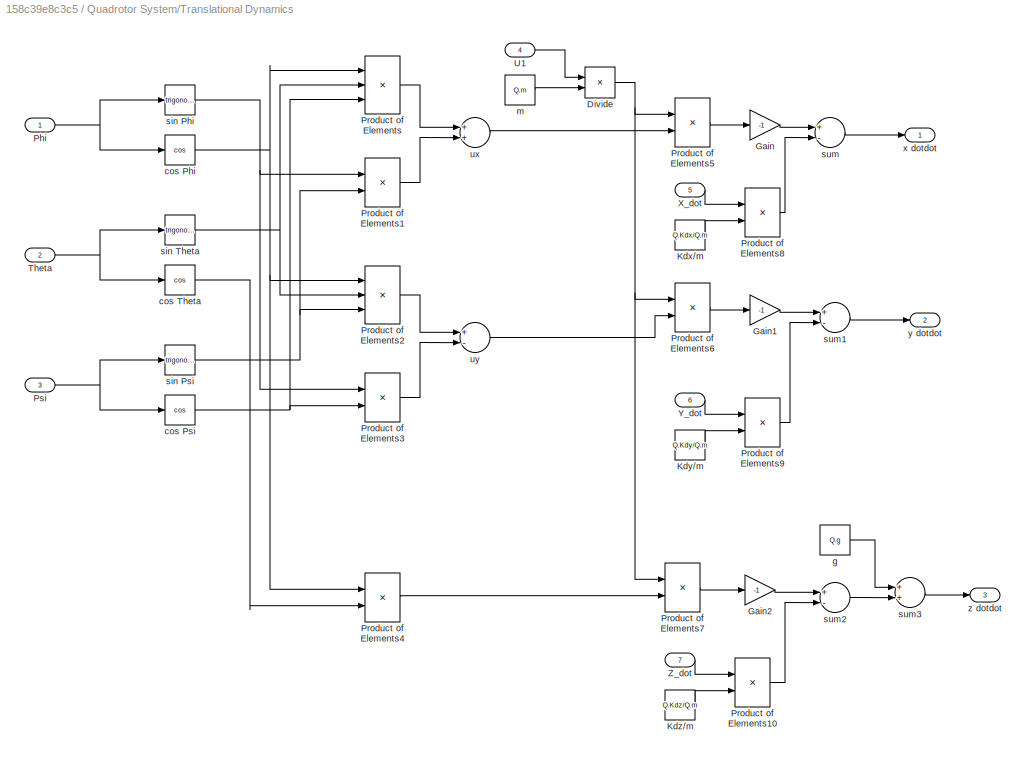
BLOCK [SubSystem] Quadrotor System/Translational Dynamics
  Ports = [7, 3]
  RequestExecContextInheritance = off
BLOCK [Product] Quadrotor System/Translational Dynamics/Divide
  InputSameDT = off
  Inputs = */
  OutDataTypeStr = Inherit: Inherit via internal rule
  Ports = [2, 1]
  RndMeth = Floor
  SaturateOnIntegerOverflow = off
BLOCK [Gain] Quadrotor System/Translational Dynamics/Gain
  Gain = -1
  OutDataTypeStr = Inherit: Inherit via internal rule
  ParamDataTypeStr = Inherit: Inherit via internal rule
  SaturateOnIntegerOverflow = off
BLOCK [Gain] Quadrotor System/Translational Dynamics/Gain1
  Gain = -1
  OutDataTypeStr = Inherit: Inherit via internal rule
  ParamDataTypeStr = Inherit: Inherit via internal rule
  SaturateOnIntegerOverflow = off
BLOCK [Gain] Quadrotor System/Translational Dynamics/Gain2
  Gain = -1
  OutDataTypeStr = Inherit: Inherit via internal rule
  ParamDataTypeStr = Inherit: Inherit via internal rule
  SaturateOnIntegerOverflow = off
BLOCK [Constant] Quadrotor System/Translational Dynamics/Kdx//m
  Value = Q.Kdx/Q.m
BLOCK [Constant] Quadrotor System/Translational Dynamics/Kdy//m
  Value = Q.Kdy/Q.m
BLOCK [Constant] Quadrotor System/Translational Dynamics/Kdz//m
  Value = Q.Kdz/Q.m
BLOCK [Inport] Quadrotor System/Translational Dynamics/Phi
  IconDisplay = Port number
BLOCK [Product] Quadrotor System/Translational Dynamics/Product of Elements
  InputSameDT = off
  Inputs = 3
  OutDataTypeStr = Inherit: Inherit via internal rule
  Ports = [3, 1]
  RndMeth = Floor
  SaturateOnIntegerOverflow = off
BLOCK [Product] Quadrotor System/Translational Dynamics/Product of Elements1
  InputSameDT = off
  OutDataTypeStr = Inherit: Inherit via internal rule
  Ports = [2, 1]
  RndMeth = Floor
  SaturateOnIntegerOverflow = off
BLOCK [Product] Quadrotor System/Translational Dynamics/Product of Elements10
  InputSameDT = off
  OutDataTypeStr = Inherit: Inherit via internal rule
  Ports = [2, 1]
  RndMeth = Floor
  SaturateOnIntegerOverflow = off
BLOCK [Product] Quadrotor System/Translational Dynamics/Product of Elements2
  InputSameDT = off
  Inputs = 3
  OutDataTypeStr = Inherit: Inherit via internal rule
  Ports = [3, 1]
  RndMeth = Floor
  SaturateOnIntegerOverflow = off
BLOCK [Product] Quadrotor System/Translational Dynamics/Product of Elements3
  InputSameDT = off
  OutDataTypeStr = Inherit: Inherit via internal rule
  Ports = [2, 1]
  RndMeth = Floor
  SaturateOnIntegerOverflow = off
BLOCK [Product] Quadrotor System/Translational Dynamics/Product of Elements4
  InputSameDT = off
  OutDataTypeStr = Inherit: Inherit via internal rule
  Ports = [2, 1]
  RndMeth = Floor
  SaturateOnIntegerOverflow = off
BLOCK [Product] Quadrotor System/Translational Dynamics/Product of Elements5
  InputSameDT = off
  OutDataTypeStr = Inherit: Inherit via internal rule
  Ports = [2, 1]
  RndMeth = Floor
  SaturateOnIntegerOverflow = off
BLOCK [Product] Quadrotor System/Translational Dynamics/Product of Elements6
  InputSameDT = off
  OutDataTypeStr = Inherit: Inherit via internal rule
  Ports = [2, 1]
  RndMeth = Floor
  SaturateOnIntegerOverflow = off
BLOCK [Product] Quadrotor System/Translational Dynamics/Product of Elements7
  InputSameDT = off
  OutDataTypeStr = Inherit: Inherit via internal rule
  Ports = [2, 1]
  RndMeth = Floor
  SaturateOnIntegerOverflow = off
BLOCK [Product] Quadrotor System/Translational Dynamics/Product of Elements8
  InputSameDT = off
  OutDataTypeStr = Inherit: Inherit via internal rule
  Ports = [2, 1]
  RndMeth = Floor
  SaturateOnIntegerOverflow = off
BLOCK [Product] Quadrotor System/Translational Dynamics/Product of Elements9
  InputSameDT = off
  OutDataTypeStr = Inherit: Inherit via internal rule
  Ports = [2, 1]
  RndMeth = Floor
  SaturateOnIntegerOverflow = off
BLOCK [Inport] Quadrotor System/Translational Dynamics/Psi
  IconDisplay = Port number
  Port = 3
BLOCK [Inport] Quadrotor System/Translational Dynamics/Theta
  IconDisplay = Port number
  Port = 2
BLOCK [Inport] Quadrotor System/Translational Dynamics/U1
  IconDisplay = Port number
  Port = 4
BLOCK [Inport] Quadrotor System/Translational Dynamics/X_dot
  IconDisplay = Port number
  Port = 5
BLOCK [Inport] Quadrotor System/Translational Dynamics/Y_dot
  IconDisplay = Port number
  Port = 6
BLOCK [Inport] Quadrotor System/Translational Dynamics/Z_dot
  IconDisplay = Port number
  Port = 7
BLOCK [Trigonometry] Quadrotor System/Translational Dynamics/cos Phi
  Operator = cos
  Ports = [1, 1]
BLOCK [Trigonometry] Quadrotor System/Translational Dynamics/cos Psi
  Operator = cos
  Ports = [1, 1]
BLOCK [Trigonometry] Quadrotor System/Translational Dynamics/cos Theta
  Operator = cos
  Ports = [1, 1]
BLOCK [Constant] Quadrotor System/Translational Dynamics/g
  Value = Q.g
BLOCK [Constant] Quadrotor System/Translational Dynamics/m
  Value = Q.m
BLOCK [Trigonometry] Quadrotor System/Translational Dynamics/sin Phi
  Ports = [1, 1]
BLOCK [Trigonometry] Quadrotor System/Translational Dynamics/sin Psi
  Ports = [1, 1]
BLOCK [Trigonometry] Quadrotor System/Translational Dynamics/sin Theta
  Ports = [1, 1]
BLOCK [Sum] Quadrotor System/Translational Dynamics/sum
  InputSameDT = off
  Inputs = +-
  OutDataTypeStr = Inherit: Inherit via internal rule
  Ports = [2, 1]
  SaturateOnIntegerOverflow = off
BLOCK [Sum] Quadrotor System/Translational Dynamics/sum1
  InputSameDT = off
  Inputs = +-
  OutDataTypeStr = Inherit: Inherit via internal rule
  Ports = [2, 1]
  SaturateOnIntegerOverflow = off
BLOCK [Sum] Quadrotor System/Translational Dynamics/sum2
  InputSameDT = off
  Inputs = +-
  OutDataTypeStr = Inherit: Inherit via internal rule
  Ports = [2, 1]
  SaturateOnIntegerOverflow = off
BLOCK [Sum] Quadrotor System/Translational Dynamics/sum3
  InputSameDT = off
  OutDataTypeStr = Inherit: Inherit via internal rule
  Ports = [2, 1]
  SaturateOnIntegerOverflow = off
BLOCK [Sum] Quadrotor System/Translational Dynamics/ux
  InputSameDT = off
  OutDataTypeStr = Inherit: Inherit via internal rule
  Ports = [2, 1]
  SaturateOnIntegerOverflow = off
BLOCK [Sum] Quadrotor System/Translational Dynamics/uy
  InputSameDT = off
  Inputs = +-
  OutDataTypeStr = Inherit: Inherit via internal rule
  Ports = [2, 1]
  SaturateOnIntegerOverflow = off
BLOCK [Outport] Quadrotor System/Translational Dynamics/x dotdot
  IconDisplay = Port number
BLOCK [Outport] Quadrotor System/Translational Dynamics/y dotdot
  IconDisplay = Port number
  Port = 2
BLOCK [Outport] Quadrotor System/Translational Dynamics/z dotdot
  IconDisplay = Port number
  Port = 3
BLOCK [Inport] Quadrotor System/U1
  IconDisplay = Port number
BLOCK [Inport] Quadrotor System/U2
  IconDisplay = Port number
  Port = 2
BLOCK [Inport] Quadrotor System/U3
  IconDisplay = Port number
  Port = 3
BLOCK [Inport] Quadrotor System/U4
  IconDisplay = Port number
  Port = 4
BLOCK [Outport] Quadrotor System/X
  IconDisplay = Port number
  Port = 5
BLOCK [Integrator] Quadrotor System/X_GF
  Ports = [1, 1]
BLOCK [Integrator] Quadrotor System/X_dot
  Ports = [1, 1]
BLOCK [Outport] Quadrotor System/Y
  IconDisplay = Port number
  Port = 6
BLOCK [Integrator] Quadrotor System/Y_GF
  Ports = [1, 1]
BLOCK [Integrator] Quadrotor System/Y_dot
  Ports = [1, 1]
BLOCK [Outport] Quadrotor System/Z
  IconDisplay = Port number
BLOCK [Integrator] Quadrotor System/Z_GF
  Ports = [1, 1]
BLOCK [Integrator] Quadrotor System/Z_dot
  Ports = [1, 1]
BLOCK [Outport] Quadrotor System/p
  IconDisplay = Port number
  Port = 7
BLOCK [Integrator] Quadrotor System/phi
  Ports = [1, 1]
  ZeroCross = off
BLOCK [Integrator] Quadrotor System/phi_dot
  Ports = [1, 1]
BLOCK [Integrator] Quadrotor System/psi
  Ports = [1, 1]
  ZeroCross = off
BLOCK [Integrator] Quadrotor System/psi_dot
  Ports = [1, 1]
  ZeroCross = off
BLOCK [Outport] Quadrotor System/q
  IconDisplay = Port number
  Port = 8
BLOCK [Outport] Quadrotor System/r
  IconDisplay = Port number
  Port = 9
BLOCK [Integrator] Quadrotor System/theta
  Ports = [1, 1]
  ZeroCross = off
BLOCK [Integrator] Quadrotor System/theta_dot
  Ports = [1, 1]
  ZeroCross = off
BLOCK [Saturate] Saturation
  InputPortMap = u0
  LowerLimit = Q.U1_min
  Ports = [1, 1]
  UpperLimit = Q.U1_max
  ZeroCross = off
BLOCK [Saturate] Saturation1
  InputPortMap = u0
  LowerLimit = -Q.theta_max
  Ports = [1, 1]
  UpperLimit = Q.theta_max
  ZeroCross = off
BLOCK [Saturate] Saturation10
  InputPortMap = u0
  LowerLimit = -Q.r_max
  Ports = [1, 1]
  UpperLimit = Q.r_max
  ZeroCross = off
BLOCK [Saturate] Saturation11
  InputPortMap = u0
  LowerLimit = -Q.r_max
  Ports = [1, 1]
  UpperLimit = Q.r_max
  ZeroCross = off
BLOCK [Saturate] Saturation2
  InputPortMap = u0
  LowerLimit = -Q.theta_max
  Ports = [1, 1]
  UpperLimit = Q.theta_max
  ZeroCross = off
BLOCK [Saturate] Saturation3
  InputPortMap = u0
  LowerLimit = -Q.phi_max
  Ports = [1, 1]
  UpperLimit = Q.phi_max
  ZeroCross = off
BLOCK [Saturate] Saturation4
  InputPortMap = u0
  LowerLimit = -Q.phi_max
  Ports = [1, 1]
  UpperLimit = Q.phi_max
  ZeroCross = off
BLOCK [Saturate] Saturation5
  InputPortMap = u0
  LowerLimit = Q.U1_min
  Ports = [1, 1]
  UpperLimit = Q.U1_max
  ZeroCross = off
BLOCK [Saturate] Saturation6
  InputPortMap = u0
  LowerLimit = -Q.p_max
  Ports = [1, 1]
  UpperLimit = Q.p_max
  ZeroCross = off
BLOCK [Saturate] Saturation7
  InputPortMap = u0
  LowerLimit = -Q.p_max
  Ports = [1, 1]
  UpperLimit = Q.p_max
  ZeroCross = off
BLOCK [Saturate] Saturation8
  InputPortMap = u0
  LowerLimit = -Q.q_max
  Ports = [1, 1]
  UpperLimit = Q.q_max
  ZeroCross = off
BLOCK [Saturate] Saturation9
  InputPortMap = u0
  LowerLimit = -Q.q_max
  Ports = [1, 1]
  UpperLimit = Q.q_max
  ZeroCross = off
BLOCK [Sum] Sum
  InputSameDT = off
  Inputs = ---
  OutDataTypeStr = Inherit: Inherit via internal rule
  Ports = [3, 1]
  SaturateOnIntegerOverflow = off
BLOCK [Sum] Sum1
  InputSameDT = off
  Inputs = +++
  OutDataTypeStr = Inherit: Inherit via internal rule
  Ports = [3, 1]
  SaturateOnIntegerOverflow = off
BLOCK [Sum] Sum2
  InputSameDT = off
  Inputs = ---+
  OutDataTypeStr = Inherit: Inherit via internal rule
  Ports = [4, 1]
  SaturateOnIntegerOverflow = off
BLOCK [Sum] Sum3
  InputSameDT = off
  Inputs = +++
  OutDataTypeStr = Inherit: Inherit via internal rule
  Ports = [3, 1]
  SaturateOnIntegerOverflow = off
BLOCK [Sum] Sum4
  InputSameDT = off
  Inputs = +++
  OutDataTypeStr = Inherit: Inherit via internal rule
  Ports = [3, 1]
  SaturateOnIntegerOverflow = off
BLOCK [Sum] Sum5
  InputSameDT = off
  Inputs = +++
  OutDataTypeStr = Inherit: Inherit via internal rule
  Ports = [3, 1]
  SaturateOnIntegerOverflow = off
BLOCK [Outport] Theta
  IconDisplay = Port number
  Port = 5
BLOCK [Sum] Theta Error
  InputSameDT = off
  Inputs = +-
  OutDataTypeStr = Inherit: Inherit via internal rule
  Ports = [2, 1]
  SaturateOnIntegerOverflow = off
BLOCK [Outport] X
  IconDisplay = Port number
BLOCK [Sum] X Error
  InputSameDT = off
  Inputs = +-
  OutDataTypeStr = Inherit: Inherit via internal rule
  Ports = [2, 1]
  SaturateOnIntegerOverflow = off
BLOCK [Inport] Xd
  IconDisplay = Port number
BLOCK [Outport] Y
  IconDisplay = Port number
  Port = 2
BLOCK [Sum] Y Error
  InputSameDT = off
  Inputs = +-
  OutDataTypeStr = Inherit: Inherit via internal rule
  Ports = [2, 1]
  SaturateOnIntegerOverflow = off
BLOCK [Inport] Yd
  IconDisplay = Port number
  Port = 2
BLOCK [Outport] Z
  IconDisplay = Port number
  Port = 3
BLOCK [Inport] Zd
  IconDisplay = Port number
  Port = 3
BLOCK [Trigonometry] cos Phi
  Operator = cos
  Ports = [1, 1]
BLOCK [Trigonometry] cos Theta
  Operator = cos
  Ports = [1, 1]
BLOCK [Sum] ez
  InputSameDT = off
  Inputs = +-
  OutDataTypeStr = Inherit: Inherit via internal rule
  Ports = [2, 1]
  SaturateOnIntegerOverflow = off
BLOCK [Constant] mg
  Value = Q.m*Q.g
BLOCK [Scope] p_Out
  Floating = off
  NumInputPorts = 1
  Ports = [1]
  ScopeSpecificationString = Simulink.scopes.TimeScopeBlockCfg('CurrentConfiguration', extmgr.ConfigurationSet(extmgr.Configuration('Core','General UI',true),extmgr.Configuration('Core','Source UI',true),extmgr.Configuration('Sources','WiredSimulink',true,'DataLoggingVariableName','ScopeData20'),extmgr.Configuration('Visuals','Time Domain',true,'SerializedDisplays',{struct('MinYLimReal','-0.39688','MaxYLimReal','0.28925','YLa...<+1378ch>
BLOCK [Scope] q_Out
  Floating = off
  NumInputPorts = 1
  Ports = [1]
  ScopeSpecificationString = Simulink.scopes.TimeScopeBlockCfg('CurrentConfiguration', extmgr.ConfigurationSet(extmgr.Configuration('Core','General UI',true),extmgr.Configuration('Core','Source UI',true),extmgr.Configuration('Sources','WiredSimulink',true,'DataLoggingVariableName','ScopeData21'),extmgr.Configuration('Visuals','Time Domain',true,'SerializedDisplays',{struct('MinYLimReal','-0.64963','MaxYLimReal','0.25089','YLa...<+1378ch>
BLOCK [Scope] r_Out
  Floating = off
  NumInputPorts = 1
  Ports = [1]
  ScopeSpecificationString = Simulink.scopes.TimeScopeBlockCfg('CurrentConfiguration', extmgr.ConfigurationSet(extmgr.Configuration('Core','General UI',true),extmgr.Configuration('Core','Source UI',true),extmgr.Configuration('Sources','WiredSimulink',true,'DataLoggingVariableName','ScopeData22'),extmgr.Configuration('Visuals','Time Domain',true,'SerializedDisplays',{struct('MinYLimReal','-0.09593','MaxYLimReal','0.06332','YLa...<+1378ch>
ANNOTATION (root): Attitude/Altitude PID Controller
ANNOTATION (root): Phi PID
ANNOTATION (root): Position Control
ANNOTATION (root): Psi PID
ANNOTATION (root): Theta PID
ANNOTATION (root): Z PID
ANNOTATION (root): x control
ANNOTATION (root): y control
ANNOTATION Desired Positions from GF -> BF: -Xsin(psi)
ANNOTATION Desired Positions from GF -> BF: Xcos(psi)
ANNOTATION Desired Positions from GF -> BF: Ycos(psi)
ANNOTATION Desired Positions from GF -> BF: Ysin(psi)
LINE Angular Rate PID Controller/p PID/Derivative:1 -> Angular Rate PID Controller/p PID/Kd:1
LINE Angular Rate PID Controller/p PID/Integrator:1 -> Angular Rate PID Controller/p PID/Ki:1
LINE Angular Rate PID Controller/p PID/Kd:1 -> Angular Rate PID Controller/p PID/Sum:3
LINE Angular Rate PID Controller/p PID/Ki:1 -> Angular Rate PID Controller/p PID/Saturation1:1
LINE Angular Rate PID Controller/p PID/Kp:1 -> Angular Rate PID Controller/p PID/Sum:1
LINE Angular Rate PID Controller/p PID/Saturation1:1 -> Angular Rate PID Controller/p PID/Sum:2
LINE Angular Rate PID Controller/p PID/Saturation2:1 -> Angular Rate PID Controller/p PID/U2:1
LINE Angular Rate PID Controller/p PID/Sum:1 -> Angular Rate PID Controller/p PID/Saturation2:1
NET Angular Rate PID Controller/p PID/p Error:1 -> Angular Rate PID Controller/p PID/Integrator:1, Angular Rate PID Controller/p PID/Kp:1
LINE Angular Rate PID Controller/p PID/p desired:1 -> Angular Rate PID Controller/p PID/p Error:1
NET Angular Rate PID Controller/p PID/p:1 -> Angular Rate PID Controller/p PID/Derivative:1, Angular Rate PID Controller/p PID/p Error:2
LINE Angular Rate PID Controller/p PID:1 -> Angular Rate PID Controller/U2:1
LINE Angular Rate PID Controller/p desired:1 -> Angular Rate PID Controller/p PID:2
LINE Angular Rate PID Controller/p:1 -> Angular Rate PID Controller/p PID:1
LINE Angular Rate PID Controller/q PID/Derivative:1 -> Angular Rate PID Controller/q PID/Kd:1
LINE Angular Rate PID Controller/q PID/Integrator:1 -> Angular Rate PID Controller/q PID/Ki:1
LINE Angular Rate PID Controller/q PID/Kd:1 -> Angular Rate PID Controller/q PID/Sum:3
LINE Angular Rate PID Controller/q PID/Ki:1 -> Angular Rate PID Controller/q PID/Saturation1:1
LINE Angular Rate PID Controller/q PID/Kp:1 -> Angular Rate PID Controller/q PID/Sum:1
LINE Angular Rate PID Controller/q PID/Saturation1:1 -> Angular Rate PID Controller/q PID/Sum:2
LINE Angular Rate PID Controller/q PID/Saturation2:1 -> Angular Rate PID Controller/q PID/U3:1
LINE Angular Rate PID Controller/q PID/Sum:1 -> Angular Rate PID Controller/q PID/Saturation2:1
NET Angular Rate PID Controller/q PID/q Error:1 -> Angular Rate PID Controller/q PID/Integrator:1, Angular Rate PID Controller/q PID/Kp:1, Angular Rate PID Controller/q PID/Scope:1
LINE Angular Rate PID Controller/q PID/q desired:1 -> Angular Rate PID Controller/q PID/q Error:1
NET Angular Rate PID Controller/q PID/q:1 -> Angular Rate PID Controller/q PID/Derivative:1, Angular Rate PID Controller/q PID/q Error:2
LINE Angular Rate PID Controller/q PID:1 -> Angular Rate PID Controller/U3:1
LINE Angular Rate PID Controller/q desired:1 -> Angular Rate PID Controller/q PID:2
LINE Angular Rate PID Controller/q:1 -> Angular Rate PID Controller/q PID:1
LINE Angular Rate PID Controller/r PID/Derivative:1 -> Angular Rate PID Controller/r PID/Kd:1
LINE Angular Rate PID Controller/r PID/Integrator:1 -> Angular Rate PID Controller/r PID/Ki:1
LINE Angular Rate PID Controller/r PID/Kd:1 -> Angular Rate PID Controller/r PID/Sum:3
LINE Angular Rate PID Controller/r PID/Ki:1 -> Angular Rate PID Controller/r PID/Saturation:1
LINE Angular Rate PID Controller/r PID/Kp:1 -> Angular Rate PID Controller/r PID/Sum:1
LINE Angular Rate PID Controller/r PID/Saturation1:1 -> Angular Rate PID Controller/r PID/U4:1
LINE Angular Rate PID Controller/r PID/Saturation:1 -> Angular Rate PID Controller/r PID/Sum:2
LINE Angular Rate PID Controller/r PID/Sum:1 -> Angular Rate PID Controller/r PID/Saturation1:1
NET Angular Rate PID Controller/r PID/r Error:1 -> Angular Rate PID Controller/r PID/Integrator:1, Angular Rate PID Controller/r PID/Kp:1
LINE Angular Rate PID Controller/r PID/r desired:1 -> Angular Rate PID Controller/r PID/r Error:1
NET Angular Rate PID Controller/r PID/r:1 -> Angular Rate PID Controller/r PID/Derivative:1, Angular Rate PID Controller/r PID/r Error:2
LINE Angular Rate PID Controller/r PID:1 -> Angular Rate PID Controller/U4:1
LINE Angular Rate PID Controller/r desired:1 -> Angular Rate PID Controller/r PID:2
LINE Angular Rate PID Controller/r:1 -> Angular Rate PID Controller/r PID:1
LINE Angular Rate PID Controller:1 -> Quadrotor System:2
LINE Angular Rate PID Controller:2 -> Quadrotor System:3
LINE Angular Rate PID Controller:3 -> Quadrotor System:4
NET Current Positions from GF -> BF/Psi:1 -> Current Positions from GF -> BF/x_bodyframe:3, Current Positions from GF -> BF/y_bodyframe:3, Current Positions from GF -> BF/z_bodyframe:3
NET Current Positions from GF -> BF/X:1 -> Current Positions from GF -> BF/x_bodyframe:4, Current Positions from GF -> BF/y_bodyframe:4, Current Positions from GF -> BF/z_bodyframe:4
NET Current Positions from GF -> BF/Y:1 -> Current Positions from GF -> BF/x_bodyframe:5, Current Positions from GF -> BF/y_bodyframe:5, Current Positions from GF -> BF/z_bodyframe:5
NET Current Positions from GF -> BF/Z:1 -> Current Positions from GF -> BF/x_bodyframe:6, Current Positions from GF -> BF/y_bodyframe:6, Current Positions from GF -> BF/z_bodyframe:6
NET Current Positions from GF -> BF/phi:1 -> Current Positions from GF -> BF/x_bodyframe:1, Current Positions from GF -> BF/y_bodyframe:1, Current Positions from GF -> BF/z_bodyframe:1
NET Current Positions from GF -> BF/theta:1 -> Current Positions from GF -> BF/x_bodyframe:2, Current Positions from GF -> BF/y_bodyframe:2, Current Positions from GF -> BF/z_bodyframe:2
LINE Current Positions from GF -> BF/x_bodyframe/Add:1 -> Current Positions from GF -> BF/x_bodyframe/x:1
LINE Current Positions from GF -> BF/x_bodyframe/Product1:1 -> Current Positions from GF -> BF/x_bodyframe/Add:2
LINE Current Positions from GF -> BF/x_bodyframe/Product2:1 -> Current Positions from GF -> BF/x_bodyframe/Add:3
LINE Current Positions from GF -> BF/x_bodyframe/Product:1 -> Current Positions from GF -> BF/x_bodyframe/Add:1
LINE Current Positions from GF -> BF/x_bodyframe/X:1 -> Current Positions from GF -> BF/x_bodyframe/Product:1
LINE Current Positions from GF -> BF/x_bodyframe/Y:1 -> Current Positions from GF -> BF/x_bodyframe/Product1:1
LINE Current Positions from GF -> BF/x_bodyframe/Z:1 -> Current Positions from GF -> BF/x_bodyframe/Product2:1
LINE Current Positions from GF -> BF/x_bodyframe/cos(psi):1 -> Current Positions from GF -> BF/x_bodyframe/Product:3
NET Current Positions from GF -> BF/x_bodyframe/cos(theta):1 -> Current Positions from GF -> BF/x_bodyframe/Product1:3, Current Positions from GF -> BF/x_bodyframe/Product:2
NET Current Positions from GF -> BF/x_bodyframe/phi:1 -> Current Positions from GF -> BF/x_bodyframe/cos(phi):1, Current Positions from GF -> BF/x_bodyframe/sin(phi):1
NET Current Positions from GF -> BF/x_bodyframe/psi:1 -> Current Positions from GF -> BF/x_bodyframe/cos(psi):1, Current Positions from GF -> BF/x_bodyframe/sin(psi):1
LINE Current Positions from GF -> BF/x_bodyframe/sin(psi):1 -> Current Positions from GF -> BF/x_bodyframe/Product1:2
LINE Current Positions from GF -> BF/x_bodyframe/sin(theta):1 -> Current Positions from GF -> BF/x_bodyframe/Product2:2
NET Current Positions from GF -> BF/x_bodyframe/theta:1 -> Current Positions from GF -> BF/x_bodyframe/cos(theta):1, Current Positions from GF -> BF/x_bodyframe/sin(theta):1
LINE Current Positions from GF -> BF/x_bodyframe:1 -> Current Positions from GF -> BF/x:1
LINE Current Positions from GF -> BF/y_bodyframe/Add1:1 -> Current Positions from GF -> BF/y_bodyframe/Product2:2
LINE Current Positions from GF -> BF/y_bodyframe/Add2:1 -> Current Positions from GF -> BF/y_bodyframe/Product6:2
LINE Current Positions from GF -> BF/y_bodyframe/Add3:1 -> Current Positions from GF -> BF/y_bodyframe/y:1
LINE Current Positions from GF -> BF/y_bodyframe/Product2:1 -> Current Positions from GF -> BF/y_bodyframe/Add3:1
LINE Current Positions from GF -> BF/y_bodyframe/Product3:1 -> Current Positions from GF -> BF/y_bodyframe/Add1:2
LINE Current Positions from GF -> BF/y_bodyframe/Product4:1 -> Current Positions from GF -> BF/y_bodyframe/Add2:1
LINE Current Positions from GF -> BF/y_bodyframe/Product5:1 -> Current Positions from GF -> BF/y_bodyframe/Add2:2
LINE Current Positions from GF -> BF/y_bodyframe/Product6:1 -> Current Positions from GF -> BF/y_bodyframe/Add3:2
LINE Current Positions from GF -> BF/y_bodyframe/Product7:1 -> Current Positions from GF -> BF/y_bodyframe/Add3:3
LINE Current Positions from GF -> BF/y_bodyframe/Product:1 -> Current Positions from GF -> BF/y_bodyframe/Add1:1
LINE Current Positions from GF -> BF/y_bodyframe/X:1 -> Current Positions from GF -> BF/y_bodyframe/Product2:1
LINE Current Positions from GF -> BF/y_bodyframe/Y:1 -> Current Positions from GF -> BF/y_bodyframe/Product6:1
LINE Current Positions from GF -> BF/y_bodyframe/Z:1 -> Current Positions from GF -> BF/y_bodyframe/Product7:3
NET Current Positions from GF -> BF/y_bodyframe/cos(phi):1 -> Current Positions from GF -> BF/y_bodyframe/Product3:1, Current Positions from GF -> BF/y_bodyframe/Product5:1
NET Current Positions from GF -> BF/y_bodyframe/cos(psi):1 -> Current Positions from GF -> BF/y_bodyframe/Product5:2, Current Positions from GF -> BF/y_bodyframe/Product:1
LINE Current Positions from GF -> BF/y_bodyframe/cos(theta):1 -> Current Positions from GF -> BF/y_bodyframe/Product7:1
NET Current Positions from GF -> BF/y_bodyframe/phi:1 -> Current Positions from GF -> BF/y_bodyframe/cos(phi):1, Current Positions from GF -> BF/y_bodyframe/sin(phi):1
NET Current Positions from GF -> BF/y_bodyframe/psi:1 -> Current Positions from GF -> BF/y_bodyframe/cos(psi):1, Current Positions from GF -> BF/y_bodyframe/sin(psi):1
NET Current Positions from GF -> BF/y_bodyframe/sin(phi):1 -> Current Positions from GF -> BF/y_bodyframe/Product4:1, Current Positions from GF -> BF/y_bodyframe/Product7:2, Current Positions from GF -> BF/y_bodyframe/Product:2
NET Current Positions from GF -> BF/y_bodyframe/sin(psi):1 -> Current Positions from GF -> BF/y_bodyframe/Product3:2, Current Positions from GF -> BF/y_bodyframe/Product4:2
NET Current Positions from GF -> BF/y_bodyframe/sin(theta):1 -> Current Positions from GF -> BF/y_bodyframe/Product4:3, Current Positions from GF -> BF/y_bodyframe/Product:3
NET Current Positions from GF -> BF/y_bodyframe/theta:1 -> Current Positions from GF -> BF/y_bodyframe/cos(theta):1, Current Positions from GF -> BF/y_bodyframe/sin(theta):1
LINE Current Positions from GF -> BF/y_bodyframe:1 -> Current Positions from GF -> BF/y:1
LINE Current Positions from GF -> BF/z_bodyframe/Add1:1 -> Current Positions from GF -> BF/z_bodyframe/Product2:2
LINE Current Positions from GF -> BF/z_bodyframe/Add2:1 -> Current Positions from GF -> BF/z_bodyframe/Product6:2
LINE Current Positions from GF -> BF/z_bodyframe/Add3:1 -> Current Positions from GF -> BF/z_bodyframe/z:1
LINE Current Positions from GF -> BF/z_bodyframe/Product2:1 -> Current Positions from GF -> BF/z_bodyframe/Add3:1
LINE Current Positions from GF -> BF/z_bodyframe/Product3:1 -> Current Positions from GF -> BF/z_bodyframe/Add1:2
LINE Current Positions from GF -> BF/z_bodyframe/Product4:1 -> Current Positions from GF -> BF/z_bodyframe/Add2:1
LINE Current Positions from GF -> BF/z_bodyframe/Product5:1 -> Current Positions from GF -> BF/z_bodyframe/Add2:2
LINE Current Positions from GF -> BF/z_bodyframe/Product6:1 -> Current Positions from GF -> BF/z_bodyframe/Add3:2
LINE Current Positions from GF -> BF/z_bodyframe/Product7:1 -> Current Positions from GF -> BF/z_bodyframe/Add3:3
LINE Current Positions from GF -> BF/z_bodyframe/Product:1 -> Current Positions from GF -> BF/z_bodyframe/Add1:1
LINE Current Positions from GF -> BF/z_bodyframe/X:1 -> Current Positions from GF -> BF/z_bodyframe/Product2:1
LINE Current Positions from GF -> BF/z_bodyframe/Y:1 -> Current Positions from GF -> BF/z_bodyframe/Product6:1
LINE Current Positions from GF -> BF/z_bodyframe/Z:1 -> Current Positions from GF -> BF/z_bodyframe/Product7:3
NET Current Positions from GF -> BF/z_bodyframe/cos(phi):1 -> Current Positions from GF -> BF/z_bodyframe/Product4:1, Current Positions from GF -> BF/z_bodyframe/Product7:2, Current Positions from GF -> BF/z_bodyframe/Product:2
NET Current Positions from GF -> BF/z_bodyframe/cos(psi):1 -> Current Positions from GF -> BF/z_bodyframe/Product5:2, Current Positions from GF -> BF/z_bodyframe/Product:1
LINE Current Positions from GF -> BF/z_bodyframe/cos(theta):1 -> Current Positions from GF -> BF/z_bodyframe/Product7:1
NET Current Positions from GF -> BF/z_bodyframe/phi:1 -> Current Positions from GF -> BF/z_bodyframe/cos(phi):1, Current Positions from GF -> BF/z_bodyframe/sin(phi):1
NET Current Positions from GF -> BF/z_bodyframe/psi:1 -> Current Positions from GF -> BF/z_bodyframe/cos(psi):1, Current Positions from GF -> BF/z_bodyframe/sin(psi):1
NET Current Positions from GF -> BF/z_bodyframe/sin(phi):1 -> Current Positions from GF -> BF/z_bodyframe/Product3:1, Current Positions from GF -> BF/z_bodyframe/Product5:1
NET Current Positions from GF -> BF/z_bodyframe/sin(psi):1 -> Current Positions from GF -> BF/z_bodyframe/Product3:2, Current Positions from GF -> BF/z_bodyframe/Product4:2
NET Current Positions from GF -> BF/z_bodyframe/sin(theta):1 -> Current Positions from GF -> BF/z_bodyframe/Product4:3, Current Positions from GF -> BF/z_bodyframe/Product:3
NET Current Positions from GF -> BF/z_bodyframe/theta:1 -> Current Positions from GF -> BF/z_bodyframe/cos(theta):1, Current Positions from GF -> BF/z_bodyframe/sin(theta):1
LINE Current Positions from GF -> BF/z_bodyframe:1 -> Current Positions from GF -> BF/z:1
NET Current Positions from GF -> BF:1 -> Derivative:1, X Error:2
NET Current Positions from GF -> BF:2 -> Derivative1:1, Y Error:2
NET Current Positions from GF -> BF:3 -> Derivative2:1, ez:2
LINE Derivative1:1 -> Kd1:1
LINE Derivative2:1 -> Kd2:1
LINE Derivative3:1 -> Kd3:1
LINE Derivative4:1 -> Kd4:1
LINE Derivative5:1 -> Kd5:1
LINE Derivative:1 -> Kd:1
LINE Desired Positions from GF -> BF/Add1:1 -> Desired Positions from GF -> BF/y_des:1
LINE Desired Positions from GF -> BF/Add:1 -> Desired Positions from GF -> BF/x_des:1
LINE Desired Positions from GF -> BF/Product1:1 -> Desired Positions from GF -> BF/Add:2
LINE Desired Positions from GF -> BF/Product2:1 -> Desired Positions from GF -> BF/Add1:1
LINE Desired Positions from GF -> BF/Product3:1 -> Desired Positions from GF -> BF/Add1:2
LINE Desired Positions from GF -> BF/Product:1 -> Desired Positions from GF -> BF/Add:1
NET Desired Positions from GF -> BF/X_des:1 -> Desired Positions from GF -> BF/Product2:1, Desired Positions from GF -> BF/Product:1
NET Desired Positions from GF -> BF/Y_des:1 -> Desired Positions from GF -> BF/Product1:1, Desired Positions from GF -> BF/Product3:1
NET Desired Positions from GF -> BF/cos(psi):1 -> Desired Positions from GF -> BF/Product3:2, Desired Positions from GF -> BF/Product:2
NET Desired Positions from GF -> BF/psi:1 -> Desired Positions from GF -> BF/cos(psi):1, Desired Positions from GF -> BF/sin(psi):1
NET Desired Positions from GF -> BF/sin(psi):1 -> Desired Positions from GF -> BF/Product1:2, Desired Positions from GF -> BF/Product2:2
LINE Desired Positions from GF -> BF:1 -> X Error:1
LINE Desired Positions from GF -> BF:2 -> Y Error:1
LINE Divide:1 -> Saturation:1
LINE Integrator1:1 -> Ki1:1
LINE Integrator2:1 -> Ki2:1
LINE Integrator3:1 -> Ki3:1
LINE Integrator4:1 -> Ki4:1
LINE Integrator5:1 -> Ki5:1
LINE Integrator:1 -> Ki:1
LINE Kd1:1 -> Sum1:3
LINE Kd2:1 -> Sum2:3
LINE Kd3:1 -> Sum3:3
LINE Kd4:1 -> Sum4:3
LINE Kd5:1 -> Sum5:3
LINE Kd:1 -> Sum:3
LINE Ki1:1 -> Saturation3:1
LINE Ki2:1 -> Saturation5:1
LINE Ki3:1 -> Saturation6:1
LINE Ki4:1 -> Saturation8:1
LINE Ki5:1 -> Saturation10:1
LINE Ki:1 -> Saturation1:1
LINE Kp1:1 -> Sum1:1
LINE Kp2:1 -> Sum2:1
LINE Kp3:1 -> Sum3:1
LINE Kp4:1 -> Sum4:1
LINE Kp5:1 -> Sum5:1
LINE Kp:1 -> Sum:1
LINE Product:1 -> Divide:2
NET Psi Error1:1 -> Integrator5:1, Kp5:1
NET Psi Error:1 -> Integrator3:1, Kp3:1
LINE Psid:1 -> Psi Error1:1
LINE Quadrotor System/Angular Velocities Transformation/Product1:1 -> Quadrotor System/Angular Velocities Transformation/Sum1:1
LINE Quadrotor System/Angular Velocities Transformation/Product2:1 -> Quadrotor System/Angular Velocities Transformation/Sum1:2
LINE Quadrotor System/Angular Velocities Transformation/Product3:1 -> Quadrotor System/Angular Velocities Transformation/Sum2:1
LINE Quadrotor System/Angular Velocities Transformation/Product4:1 -> Quadrotor System/Angular Velocities Transformation/Sum2:2
LINE Quadrotor System/Angular Velocities Transformation/Product:1 -> Quadrotor System/Angular Velocities Transformation/Sum:2
LINE Quadrotor System/Angular Velocities Transformation/Sum1:1 -> Quadrotor System/Angular Velocities Transformation/q:1
LINE Quadrotor System/Angular Velocities Transformation/Sum2:1 -> Quadrotor System/Angular Velocities Transformation/r:1
LINE Quadrotor System/Angular Velocities Transformation/Sum:1 -> Quadrotor System/Angular Velocities Transformation/p:1
NET Quadrotor System/Angular Velocities Transformation/phi:1 -> Quadrotor System/Angular Velocities Transformation/sin1:1, Quadrotor System/Angular Velocities Transformation/sin2:1, Quadrotor System/Angular Velocities Transformation/sin3:1, Quadrotor System/Angular Velocities Transformation/sin5:1
LINE Quadrotor System/Angular Velocities Transformation/phi_dot:1 -> Quadrotor System/Angular Velocities Transformation/Sum:1
NET Quadrotor System/Angular Velocities Transformation/psi_dot:1 -> Quadrotor System/Angular Velocities Transformation/Product2:3, Quadrotor System/Angular Velocities Transformation/Product4:1, Quadrotor System/Angular Velocities Transformation/Product:2
LINE Quadrotor System/Angular Velocities Transformation/sin1:1 -> Quadrotor System/Angular Velocities Transformation/Product1:1
LINE Quadrotor System/Angular Velocities Transformation/sin2:1 -> Quadrotor System/Angular Velocities Transformation/Product2:1
LINE Quadrotor System/Angular Velocities Transformation/sin3:1 -> Quadrotor System/Angular Velocities Transformation/Product3:2
LINE Quadrotor System/Angular Velocities Transformation/sin4:1 -> Quadrotor System/Angular Velocities Transformation/Product2:2
LINE Quadrotor System/Angular Velocities Transformation/sin5:1 -> Quadrotor System/Angular Velocities Transformation/Product4:2
LINE Quadrotor System/Angular Velocities Transformation/sin6:1 -> Quadrotor System/Angular Velocities Transformation/Product4:3
LINE Quadrotor System/Angular Velocities Transformation/sin:1 -> Quadrotor System/Angular Velocities Transformation/Product:1
NET Quadrotor System/Angular Velocities Transformation/theta:1 -> Quadrotor System/Angular Velocities Transformation/sin4:1, Quadrotor System/Angular Velocities Transformation/sin6:1, Quadrotor System/Angular Velocities Transformation/sin:1
NET Quadrotor System/Angular Velocities Transformation/theta_dot:1 -> Quadrotor System/Angular Velocities Transformation/Product1:2, Quadrotor System/Angular Velocities Transformation/Product3:1
NET Quadrotor System/Angular Velocities Transformation:1 -> Quadrotor System/Rotational Equations:1, Quadrotor System/p:1
NET Quadrotor System/Angular Velocities Transformation:2 -> Quadrotor System/Rotational Equations:2, Quadrotor System/q:1
NET Quadrotor System/Angular Velocities Transformation:3 -> Quadrotor System/Rotational Equations:3, Quadrotor System/r:1
NET Quadrotor System/BLDC_Sp_Calc/2*KT*l:1 -> Quadrotor System/BLDC_Sp_Calc/Divide1:2, Quadrotor System/BLDC_Sp_Calc/Divide2:2
LINE Quadrotor System/BLDC_Sp_Calc/4*KT:1 -> Quadrotor System/BLDC_Sp_Calc/Divide:2
LINE Quadrotor System/BLDC_Sp_Calc/4*Kd:1 -> Quadrotor System/BLDC_Sp_Calc/Divide3:2
LINE Quadrotor System/BLDC_Sp_Calc/Add:1 -> Quadrotor System/BLDC_Sp_Calc/omega_sum:1
NET Quadrotor System/BLDC_Sp_Calc/Divide1:1 -> Quadrotor System/BLDC_Sp_Calc/Omegasqr2:2, Quadrotor System/BLDC_Sp_Calc/Omegasqr4:2
NET Quadrotor System/BLDC_Sp_Calc/Divide2:1 -> Quadrotor System/BLDC_Sp_Calc/Omegasqr1:2, Quadrotor System/BLDC_Sp_Calc/Omegasqr3:2
NET Quadrotor System/BLDC_Sp_Calc/Divide3:1 -> Quadrotor System/BLDC_Sp_Calc/Omegasqr1:3, Quadrotor System/BLDC_Sp_Calc/Omegasqr2:3, Quadrotor System/BLDC_Sp_Calc/Omegasqr3:3, Quadrotor System/BLDC_Sp_Calc/Omegasqr4:3
NET Quadrotor System/BLDC_Sp_Calc/Divide:1 -> Quadrotor System/BLDC_Sp_Calc/Omegasqr1:1, Quadrotor System/BLDC_Sp_Calc/Omegasqr2:1, Quadrotor System/BLDC_Sp_Calc/Omegasqr3:1, Quadrotor System/BLDC_Sp_Calc/Omegasqr4:1
NET Quadrotor System/BLDC_Sp_Calc/KT:1 -> Quadrotor System/BLDC_Sp_Calc/times1:1, Quadrotor System/BLDC_Sp_Calc/times2:1, Quadrotor System/BLDC_Sp_Calc/times:1
LINE Quadrotor System/BLDC_Sp_Calc/Kd:1 -> Quadrotor System/BLDC_Sp_Calc/times3:2
LINE Quadrotor System/BLDC_Sp_Calc/Omegasqr1:1 -> Quadrotor System/BLDC_Sp_Calc/Saturation:1
LINE Quadrotor System/BLDC_Sp_Calc/Omegasqr1cal:1 -> Quadrotor System/BLDC_Sp_Calc/times:2
LINE Quadrotor System/BLDC_Sp_Calc/Omegasqr2:1 -> Quadrotor System/BLDC_Sp_Calc/Saturation1:1
LINE Quadrotor System/BLDC_Sp_Calc/Omegasqr2cal:1 -> Quadrotor System/BLDC_Sp_Calc/times1:2
LINE Quadrotor System/BLDC_Sp_Calc/Omegasqr3:1 -> Quadrotor System/BLDC_Sp_Calc/Saturation3:1
LINE Quadrotor System/BLDC_Sp_Calc/Omegasqr3cal:1 -> Quadrotor System/BLDC_Sp_Calc/times2:2
LINE Quadrotor System/BLDC_Sp_Calc/Omegasqr4:1 -> Quadrotor System/BLDC_Sp_Calc/Saturation2:1
LINE Quadrotor System/BLDC_Sp_Calc/Omegasqr4cal:1 -> Quadrotor System/BLDC_Sp_Calc/times3:1
NET Quadrotor System/BLDC_Sp_Calc/Saturation1:1 -> Quadrotor System/BLDC_Sp_Calc/Omegasqr1cal:2, Quadrotor System/BLDC_Sp_Calc/Omegasqr2cal:1, Quadrotor System/BLDC_Sp_Calc/Omegasqr4cal:2, Quadrotor System/BLDC_Sp_Calc/Scope6:1, Quadrotor System/BLDC_Sp_Calc/Sqrt1:1
NET Quadrotor System/BLDC_Sp_Calc/Saturation2:1 -> Quadrotor System/BLDC_Sp_Calc/Omegasqr1cal:4, Quadrotor System/BLDC_Sp_Calc/Omegasqr2cal:2, Quadrotor System/BLDC_Sp_Calc/Omegasqr4cal:4, Quadrotor System/BLDC_Sp_Calc/Scope4:1, Quadrotor System/BLDC_Sp_Calc/Sqrt3:1
NET Quadrotor System/BLDC_Sp_Calc/Saturation3:1 -> Quadrotor System/BLDC_Sp_Calc/Omegasqr1cal:3, Quadrotor System/BLDC_Sp_Calc/Omegasqr3cal:2, Quadrotor System/BLDC_Sp_Calc/Omegasqr4cal:3, Quadrotor System/BLDC_Sp_Calc/Scope5:1, Quadrotor System/BLDC_Sp_Calc/Sqrt2:1
NET Quadrotor System/BLDC_Sp_Calc/Saturation:1 -> Quadrotor System/BLDC_Sp_Calc/Omegasqr1cal:1, Quadrotor System/BLDC_Sp_Calc/Omegasqr3cal:1, Quadrotor System/BLDC_Sp_Calc/Omegasqr4cal:1, Quadrotor System/BLDC_Sp_Calc/Scope7:1, Quadrotor System/BLDC_Sp_Calc/Sqrt:1
LINE Quadrotor System/BLDC_Sp_Calc/Sqrt1:1 -> Quadrotor System/BLDC_Sp_Calc/Add:2
LINE Quadrotor System/BLDC_Sp_Calc/Sqrt2:1 -> Quadrotor System/BLDC_Sp_Calc/Add:3
LINE Quadrotor System/BLDC_Sp_Calc/Sqrt3:1 -> Quadrotor System/BLDC_Sp_Calc/Add:4
LINE Quadrotor System/BLDC_Sp_Calc/Sqrt:1 -> Quadrotor System/BLDC_Sp_Calc/Add:1
NET Quadrotor System/BLDC_Sp_Calc/U1:1 -> Quadrotor System/BLDC_Sp_Calc/Divide:1, Quadrotor System/BLDC_Sp_Calc/Scope:1
NET Quadrotor System/BLDC_Sp_Calc/U2:1 -> Quadrotor System/BLDC_Sp_Calc/Divide1:1, Quadrotor System/BLDC_Sp_Calc/Scope8:1
NET Quadrotor System/BLDC_Sp_Calc/U3:1 -> Quadrotor System/BLDC_Sp_Calc/Divide2:1, Quadrotor System/BLDC_Sp_Calc/Scope9:1
NET Quadrotor System/BLDC_Sp_Calc/U4:1 -> Quadrotor System/BLDC_Sp_Calc/Divide3:1, Quadrotor System/BLDC_Sp_Calc/Scope2:1
NET Quadrotor System/BLDC_Sp_Calc/l:1 -> Quadrotor System/BLDC_Sp_Calc/times5:1, Quadrotor System/BLDC_Sp_Calc/times6:1
LINE Quadrotor System/BLDC_Sp_Calc/times1:1 -> Quadrotor System/BLDC_Sp_Calc/times5:2
LINE Quadrotor System/BLDC_Sp_Calc/times2:1 -> Quadrotor System/BLDC_Sp_Calc/times6:2
NET Quadrotor System/BLDC_Sp_Calc/times3:1 -> Quadrotor System/BLDC_Sp_Calc/Scope3:1, Quadrotor System/BLDC_Sp_Calc/u4:1
LINE Quadrotor System/BLDC_Sp_Calc/times5:1 -> Quadrotor System/BLDC_Sp_Calc/u2:1
LINE Quadrotor System/BLDC_Sp_Calc/times6:1 -> Quadrotor System/BLDC_Sp_Calc/u3:1
NET Quadrotor System/BLDC_Sp_Calc/times:1 -> Quadrotor System/BLDC_Sp_Calc/Scope1:1, Quadrotor System/BLDC_Sp_Calc/u1:1
LINE Quadrotor System/BLDC_Sp_Calc:1 -> Quadrotor System/Translational Dynamics:4
LINE Quadrotor System/BLDC_Sp_Calc:2 -> Quadrotor System/Rotational Equations:4
LINE Quadrotor System/BLDC_Sp_Calc:3 -> Quadrotor System/Rotational Equations:5
LINE Quadrotor System/BLDC_Sp_Calc:4 -> Quadrotor System/Rotational Equations:6
LINE Quadrotor System/BLDC_Sp_Calc:5 -> Quadrotor System/Rotational Equations:7
LINE Quadrotor System/Rotational Equations/(Jx-Jy)//Jz:1 -> Quadrotor System/Rotational Equations/Product of Elements6:1
LINE Quadrotor System/Rotational Equations/(Jy-Jz)//Jx:1 -> Quadrotor System/Rotational Equations/Product of Elements:1
LINE Quadrotor System/Rotational Equations/(Jz-Jx)//Jy:1 -> Quadrotor System/Rotational Equations/Product of Elements3:1
LINE Quadrotor System/Rotational Equations/1//Jz:1 -> Quadrotor System/Rotational Equations/Product of Elements7:1
LINE Quadrotor System/Rotational Equations/Add1:1 -> Quadrotor System/Rotational Equations/theta_dotdot:1
LINE Quadrotor System/Rotational Equations/Add2:1 -> Quadrotor System/Rotational Equations/psi_dotdot:1
LINE Quadrotor System/Rotational Equations/Add:1 -> Quadrotor System/Rotational Equations/phi_dotdot:1
LINE Quadrotor System/Rotational Equations/Jp//Jx:1 -> Quadrotor System/Rotational Equations/Product of Elements1:1
LINE Quadrotor System/Rotational Equations/Jp//Jy:1 -> Quadrotor System/Rotational Equations/Product of Elements4:1
NET Quadrotor System/Rotational Equations/Omega_sum:1 -> Quadrotor System/Rotational Equations/Product of Elements1:3, Quadrotor System/Rotational Equations/Product of Elements4:3
LINE Quadrotor System/Rotational Equations/Product of Elements1:1 -> Quadrotor System/Rotational Equations/Add:2
LINE Quadrotor System/Rotational Equations/Product of Elements2:1 -> Quadrotor System/Rotational Equations/Add:3
LINE Quadrotor System/Rotational Equations/Product of Elements3:1 -> Quadrotor System/Rotational Equations/Add1:1
LINE Quadrotor System/Rotational Equations/Product of Elements4:1 -> Quadrotor System/Rotational Equations/Add1:2
LINE Quadrotor System/Rotational Equations/Product of Elements5:1 -> Quadrotor System/Rotational Equations/Add1:3
LINE Quadrotor System/Rotational Equations/Product of Elements6:1 -> Quadrotor System/Rotational Equations/Add2:1
LINE Quadrotor System/Rotational Equations/Product of Elements7:1 -> Quadrotor System/Rotational Equations/Add2:2
LINE Quadrotor System/Rotational Equations/Product of Elements:1 -> Quadrotor System/Rotational Equations/Add:1
LINE Quadrotor System/Rotational Equations/U2:1 -> Quadrotor System/Rotational Equations/Product of Elements2:2
LINE Quadrotor System/Rotational Equations/U3:1 -> Quadrotor System/Rotational Equations/Product of Elements5:2
LINE Quadrotor System/Rotational Equations/U4:1 -> Quadrotor System/Rotational Equations/Product of Elements7:2
LINE Quadrotor System/Rotational Equations/l//Jx:1 -> Quadrotor System/Rotational Equations/Product of Elements2:1
LINE Quadrotor System/Rotational Equations/l//Jy:1 -> Quadrotor System/Rotational Equations/Product of Elements5:1
NET Quadrotor System/Rotational Equations/p:1 -> Quadrotor System/Rotational Equations/Product of Elements3:2, Quadrotor System/Rotational Equations/Product of Elements4:2, Quadrotor System/Rotational Equations/Product of Elements6:2
NET Quadrotor System/Rotational Equations/q:1 -> Quadrotor System/Rotational Equations/Product of Elements1:2, Quadrotor System/Rotational Equations/Product of Elements6:3, Quadrotor System/Rotational Equations/Product of Elements:2
NET Quadrotor System/Rotational Equations/r:1 -> Quadrotor System/Rotational Equations/Product of Elements3:3, Quadrotor System/Rotational Equations/Product of Elements:3
LINE Quadrotor System/Rotational Equations:1 -> Quadrotor System/phi_dot:1
LINE Quadrotor System/Rotational Equations:2 -> Quadrotor System/theta_dot:1
LINE Quadrotor System/Rotational Equations:3 -> Quadrotor System/psi_dot:1
NET Quadrotor System/Translational Dynamics/Divide:1 -> Quadrotor System/Translational Dynamics/Product of Elements5:1, Quadrotor System/Translational Dynamics/Product of Elements6:1, Quadrotor System/Translational Dynamics/Product of Elements7:1
LINE Quadrotor System/Translational Dynamics/Gain1:1 -> Quadrotor System/Translational Dynamics/sum1:1
LINE Quadrotor System/Translational Dynamics/Gain2:1 -> Quadrotor System/Translational Dynamics/sum2:1
LINE Quadrotor System/Translational Dynamics/Gain:1 -> Quadrotor System/Translational Dynamics/sum:1
LINE Quadrotor System/Translational Dynamics/Kdx//m:1 -> Quadrotor System/Translational Dynamics/Product of Elements8:2
LINE Quadrotor System/Translational Dynamics/Kdy//m:1 -> Quadrotor System/Translational Dynamics/Product of Elements9:2
LINE Quadrotor System/Translational Dynamics/Kdz//m:1 -> Quadrotor System/Translational Dynamics/Product of Elements10:2
NET Quadrotor System/Translational Dynamics/Phi:1 -> Quadrotor System/Translational Dynamics/cos Phi:1, Quadrotor System/Translational Dynamics/sin Phi:1
LINE Quadrotor System/Translational Dynamics/Product of Elements10:1 -> Quadrotor System/Translational Dynamics/sum2:2
LINE Quadrotor System/Translational Dynamics/Product of Elements1:1 -> Quadrotor System/Translational Dynamics/ux:2
LINE Quadrotor System/Translational Dynamics/Product of Elements2:1 -> Quadrotor System/Translational Dynamics/uy:1
LINE Quadrotor System/Translational Dynamics/Product of Elements3:1 -> Quadrotor System/Translational Dynamics/uy:2
LINE Quadrotor System/Translational Dynamics/Product of Elements4:1 -> Quadrotor System/Translational Dynamics/Product of Elements7:2
LINE Quadrotor System/Translational Dynamics/Product of Elements5:1 -> Quadrotor System/Translational Dynamics/Gain:1
LINE Quadrotor System/Translational Dynamics/Product of Elements6:1 -> Quadrotor System/Translational Dynamics/Gain1:1
LINE Quadrotor System/Translational Dynamics/Product of Elements7:1 -> Quadrotor System/Translational Dynamics/Gain2:1
LINE Quadrotor System/Translational Dynamics/Product of Elements8:1 -> Quadrotor System/Translational Dynamics/sum:2
LINE Quadrotor System/Translational Dynamics/Product of Elements9:1 -> Quadrotor System/Translational Dynamics/sum1:2
LINE Quadrotor System/Translational Dynamics/Product of Elements:1 -> Quadrotor System/Translational Dynamics/ux:1
NET Quadrotor System/Translational Dynamics/Psi:1 -> Quadrotor System/Translational Dynamics/cos Psi:1, Quadrotor System/Translational Dynamics/sin Psi:1
NET Quadrotor System/Translational Dynamics/Theta:1 -> Quadrotor System/Translational Dynamics/cos Theta:1, Quadrotor System/Translational Dynamics/sin Theta:1
LINE Quadrotor System/Translational Dynamics/U1:1 -> Quadrotor System/Translational Dynamics/Divide:1
LINE Quadrotor System/Translational Dynamics/X_dot:1 -> Quadrotor System/Translational Dynamics/Product of Elements8:1
LINE Quadrotor System/Translational Dynamics/Y_dot:1 -> Quadrotor System/Translational Dynamics/Product of Elements9:1
LINE Quadrotor System/Translational Dynamics/Z_dot:1 -> Quadrotor System/Translational Dynamics/Product of Elements10:1
NET Quadrotor System/Translational Dynamics/cos Phi:1 -> Quadrotor System/Translational Dynamics/Product of Elements2:1, Quadrotor System/Translational Dynamics/Product of Elements4:1, Quadrotor System/Translational Dynamics/Product of Elements:1
NET Quadrotor System/Translational Dynamics/cos Psi:1 -> Quadrotor System/Translational Dynamics/Product of Elements3:2, Quadrotor System/Translational Dynamics/Product of Elements:3
LINE Quadrotor System/Translational Dynamics/cos Theta:1 -> Quadrotor System/Translational Dynamics/Product of Elements4:2
LINE Quadrotor System/Translational Dynamics/g:1 -> Quadrotor System/Translational Dynamics/sum3:1
LINE Quadrotor System/Translational Dynamics/m:1 -> Quadrotor System/Translational Dynamics/Divide:2
NET Quadrotor System/Translational Dynamics/sin Phi:1 -> Quadrotor System/Translational Dynamics/Product of Elements1:1, Quadrotor System/Translational Dynamics/Product of Elements3:1
NET Quadrotor System/Translational Dynamics/sin Psi:1 -> Quadrotor System/Translational Dynamics/Product of Elements1:2, Quadrotor System/Translational Dynamics/Product of Elements2:3
NET Quadrotor System/Translational Dynamics/sin Theta:1 -> Quadrotor System/Translational Dynamics/Product of Elements2:2, Quadrotor System/Translational Dynamics/Product of Elements:2
LINE Quadrotor System/Translational Dynamics/sum1:1 -> Quadrotor System/Translational Dynamics/y dotdot:1
LINE Quadrotor System/Translational Dynamics/sum2:1 -> Quadrotor System/Translational Dynamics/sum3:2
LINE Quadrotor System/Translational Dynamics/sum3:1 -> Quadrotor System/Translational Dynamics/z dotdot:1
LINE Quadrotor System/Translational Dynamics/sum:1 -> Quadrotor System/Translational Dynamics/x dotdot:1
LINE Quadrotor System/Translational Dynamics/ux:1 -> Quadrotor System/Translational Dynamics/Product of Elements5:2
LINE Quadrotor System/Translational Dynamics/uy:1 -> Quadrotor System/Translational Dynamics/Product of Elements6:2
LINE Quadrotor System/Translational Dynamics:1 -> Quadrotor System/X_dot:1
LINE Quadrotor System/Translational Dynamics:2 -> Quadrotor System/Y_dot:1
LINE Quadrotor System/Translational Dynamics:3 -> Quadrotor System/Z_dot:1
LINE Quadrotor System/U1:1 -> Quadrotor System/BLDC_Sp_Calc:1
LINE Quadrotor System/U2:1 -> Quadrotor System/BLDC_Sp_Calc:2
LINE Quadrotor System/U3:1 -> Quadrotor System/BLDC_Sp_Calc:3
LINE Quadrotor System/U4:1 -> Quadrotor System/BLDC_Sp_Calc:4
LINE Quadrotor System/X_GF:1 -> Quadrotor System/X:1
NET Quadrotor System/X_dot:1 -> Quadrotor System/Translational Dynamics:5, Quadrotor System/X_GF:1
LINE Quadrotor System/Y_GF:1 -> Quadrotor System/Y:1
NET Quadrotor System/Y_dot:1 -> Quadrotor System/Translational Dynamics:6, Quadrotor System/Y_GF:1
LINE Quadrotor System/Z_GF:1 -> Quadrotor System/Z:1
NET Quadrotor System/Z_dot:1 -> Quadrotor System/Translational Dynamics:7, Quadrotor System/Z_GF:1
NET Quadrotor System/phi:1 -> Quadrotor System/Angular Velocities Transformation:2, Quadrotor System/Phi:1, Quadrotor System/Translational Dynamics:1
NET Quadrotor System/phi_dot:1 -> Quadrotor System/Angular Velocities Transformation:3, Quadrotor System/phi:1
NET Quadrotor System/psi:1 -> Quadrotor System/Psi:1, Quadrotor System/Translational Dynamics:3
NET Quadrotor System/psi_dot:1 -> Quadrotor System/Angular Velocities Transformation:5, Quadrotor System/psi:1
NET Quadrotor System/theta:1 -> Quadrotor System/Angular Velocities Transformation:1, Quadrotor System/Theta:1, Quadrotor System/Translational Dynamics:2
NET Quadrotor System/theta_dot:1 -> Quadrotor System/Angular Velocities Transformation:4, Quadrotor System/theta:1
NET Quadrotor System:1 -> Current Positions from GF -> BF:3, Z:1
NET Quadrotor System:2 -> Current Positions from GF -> BF:4, Derivative3:1, Phi:1, Psi Error:2, cos Phi:1
NET Quadrotor System:3 -> Current Positions from GF -> BF:5, Derivative4:1, Theta Error:2, Theta:1, cos Theta:1
NET Quadrotor System:4 -> Current Positions from GF -> BF:6, Derivative5:1, Desired Positions from GF -> BF:3, Psi Error1:2, Psi:1
NET Quadrotor System:5 -> Current Positions from GF -> BF:1, X:1
NET Quadrotor System:6 -> Current Positions from GF -> BF:2, Y:1
NET Quadrotor System:7 -> Angular Rate PID Controller:1, p_Out:1
NET Quadrotor System:8 -> Angular Rate PID Controller:3, q_Out:1
NET Quadrotor System:9 -> Angular Rate PID Controller:5, r_Out:1
LINE Saturation10:1 -> Sum5:2
LINE Saturation11:1 -> Angular Rate PID Controller:6
LINE Saturation1:1 -> Sum:2
LINE Saturation2:1 -> Theta Error:1
LINE Saturation3:1 -> Sum1:2
LINE Saturation4:1 -> Psi Error:1
LINE Saturation5:1 -> Sum2:2
LINE Saturation6:1 -> Sum3:2
LINE Saturation7:1 -> Angular Rate PID Controller:2
LINE Saturation8:1 -> Sum4:2
LINE Saturation9:1 -> Angular Rate PID Controller:4
LINE Saturation:1 -> Quadrotor System:1
LINE Sum1:1 -> Saturation4:1
LINE Sum2:1 -> Divide:1
LINE Sum3:1 -> Saturation7:1
LINE Sum4:1 -> Saturation9:1
LINE Sum5:1 -> Saturation11:1
LINE Sum:1 -> Saturation2:1
NET Theta Error:1 -> Integrator4:1, Kp4:1
NET X Error:1 -> Integrator:1, Kp:1
LINE Xd:1 -> Desired Positions from GF -> BF:1
NET Y Error:1 -> Integrator1:1, Kp1:1
LINE Yd:1 -> Desired Positions from GF -> BF:2
LINE Zd:1 -> ez:1
LINE cos Phi:1 -> Product:1
LINE cos Theta:1 -> Product:2
NET ez:1 -> Integrator2:1, Kp2:1
LINE mg:1 -> Sum2:4
note: NET lines group one-source signal fan-out (src -> all destinations, sorted); 1:1 wires keep LINE
